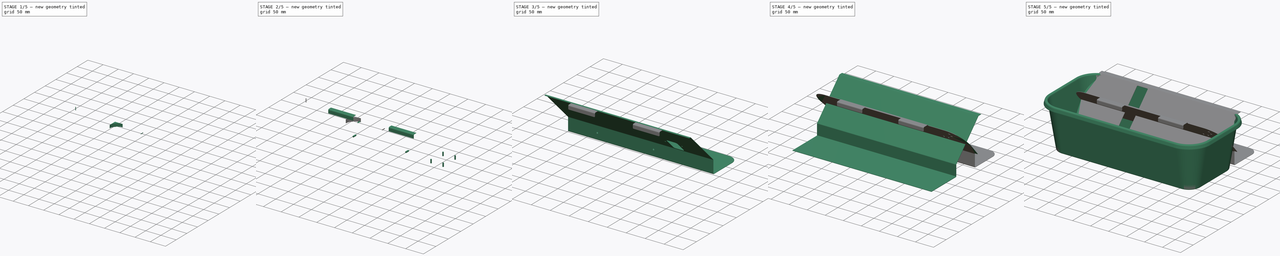
[diagram: build sequence overview — one tinted view per stage of 5, left to right]
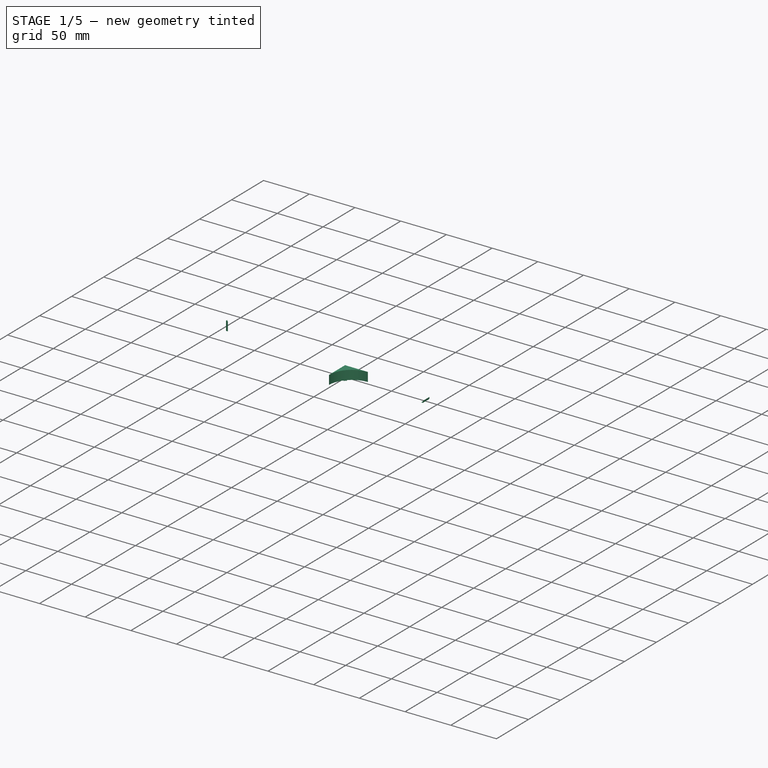
[diagram: stage 1 of 5 — iso view after this stage's code; geometry added in this stage tinted green]
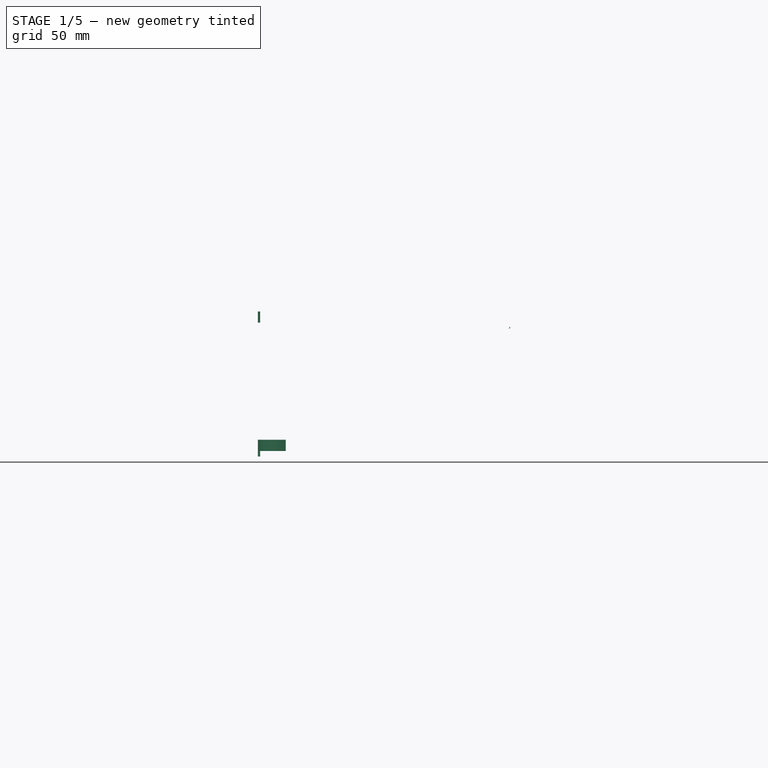
[diagram: stage 1 of 5 — front view after this stage's code; geometry added in this stage tinted green]
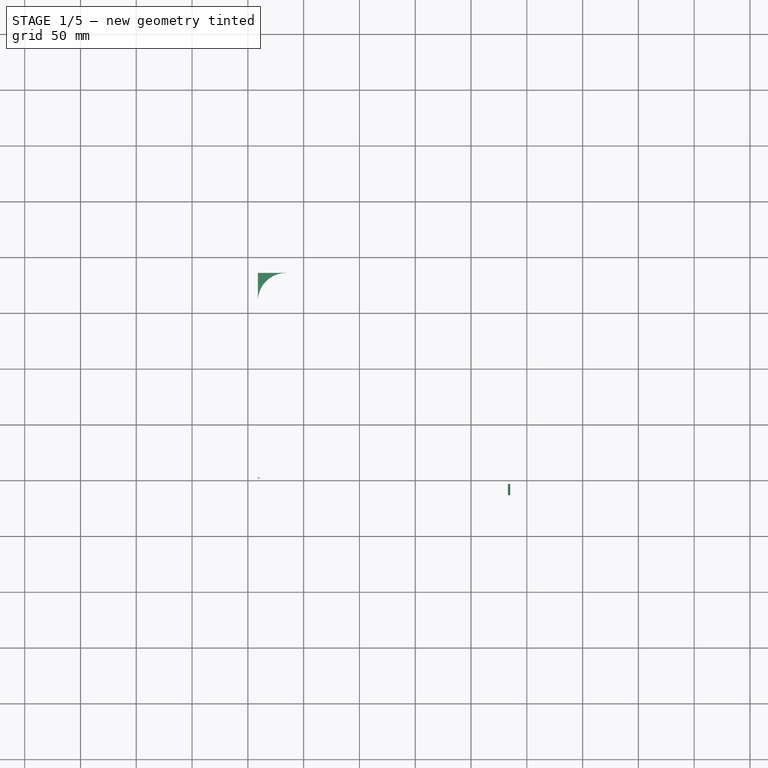
[diagram: stage 1 of 5 — top view after this stage's code; geometry added in this stage tinted green]
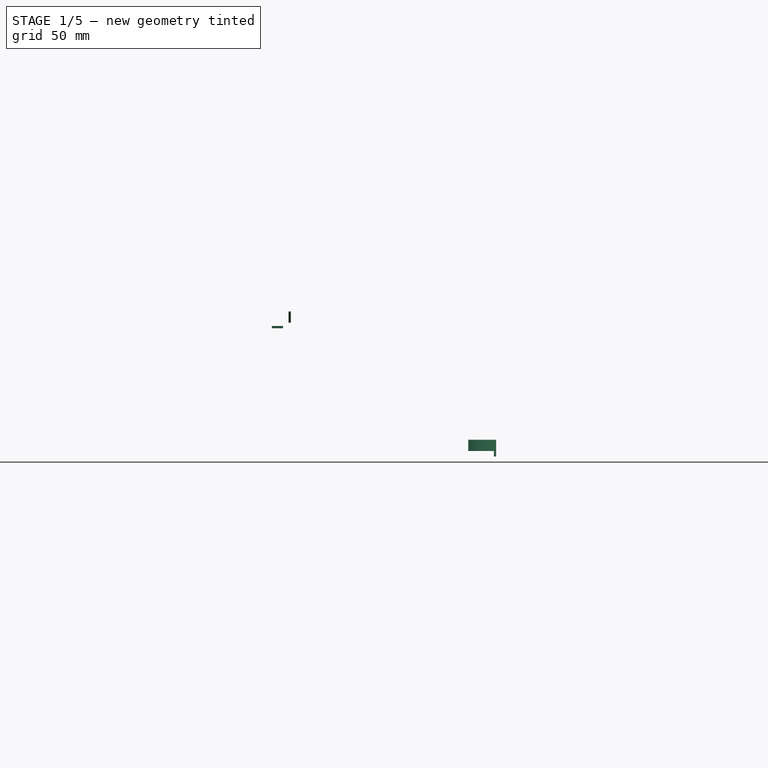
[diagram: stage 1 of 5 — right view after this stage's code; geometry added in this stage tinted green]
FCSTD DOCUMENT  (FreeCAD 0.22R37100 (Git))
Label: basin450x225x125
License: All rights reserved
LicenseURL: http://en.wikipedia.org/wiki/All_rights_reserved
objects: Sketcher::SketchObject×25, Part::FeaturePython×17, PartDesign::Pocket×8, TechDraw::DrawViewDimension×7, PartDesign::Pad×4, PartDesign::SubShapeBinder×4, PartDesign::CoordinateSystem×4, Part::Extrusion×4, PartDesign::Body×3, Part::Compound×3, PartDesign::FeaturePython×2, Part::Mirroring×2, PartDesign::Boolean×2, PartDesign::LinearPattern×2, TechDraw::DrawProjGroupItem×2, PartDesign::SubtractivePipe×1, PartDesign::Thickness×1, PartDesign::Mirrored×1, Part::MultiFuse×1, PartDesign::MultiTransform×1, +4 more types
note: 114 computed .brp shape members not serialized (recipe doc carries the construction recipe); baked Part::Feature solids carry a one-line shape summary decoded from their .brp
EXTERNAL_REF file=composit_stand10/composit_stand10_model.FCStd obj=Assembly

FEATURE [PartDesign::Body] Body001  label="basin450x225x125_pump_holder"
  Group = -> [Binder,BaseBend,Sketch004,Pocket001,Mirrored,Sketch005,Binder001,Pad001,Local_CS001,Sketch006,Pocket002]
  Origin = -> Origin001
  Tip = -> Pocket002
FEATURE [PartDesign::SubShapeBinder] Binder045
  BindCopyOnChange = 0
  BindMode = 0
  ClaimChildren = true
  Context = -> Body033 [Binder045.]
  Fuse = false
  MakeFace = true
  OffsetFill = false
  OffsetIntersection = false
  OffsetJoinType = 0
  OffsetOpenResult = false
  PartialLoad = false
  Placement = pos=(0,0,0) rot=(0.57735,0.57735,0.57735;2.0944rad)
  Relative = false
  Support = -> [Sketch117]
  _Version = 2
  expr: Placement = <<pump_holder_base_sketch>>.Placement
FEATURE [PartDesign::FeaturePython] BaseBend022  label="pump_holder_BaseBend"  # WARN: FeaturePython — macro-defined, semantics opaque (R4)
  BendSide = 1
  BendSketch = -> Binder045
  MidPlane = true
  Reverse = false
  Suppressed = false
  length = 382
  radius = 2
  thickness = 0.7
FEATURE [PartDesign::SubShapeBinder] Binder046
  BindCopyOnChange = 0
  BindMode = 0
  ClaimChildren = true
  Context = -> <external composit_stand10/composit_stand10_model.FCStd>#Assembly [pump_holder.Binder046.]
  Fuse = false
  MakeFace = true
  OffsetFill = false
  OffsetIntersection = false
  OffsetJoinType = 0
  OffsetOpenResult = false
  PartialLoad = false
  Relative = false
  Support = -> [Part__Mirroring028]
  _Version = 2
  expr: Support = <<Sketch108 (Mirror #26)>>._self
FEATURE [Part::FeaturePython] LinearArray019  # WARN: FeaturePython — macro-defined, semantics opaque (R4)
  Alignment = 0
  CellStart = A1
  Count = 2
  Dir = (1,0,0)
  DirIsDriven = true
  DistributionLaw = 0
  DrivenProperty = 1
  EndInclusive = true
  ExposePlacement = false
  GeneratorMode = 0
  MarkerShape = 1
  MarkerSize = 0
  NumElements = 2
  OrientMode = 1
  Placement = pos=(-85,0,0) rot=(0,0,1;0rad)
  Point = (0,0,0)
  PointIsDriven = true
  Reverse = false
  SpanEnd = 170
  SpanStart = 0
  Step = 170
  Type = lattice2LinearArray.LinearArray
  VSGVersion = 1
  Values = 0.0 | 170.0
  ValuesSource = 2
  isLattice = 1
  expr: .Placement.Base.x = -SpanEnd / 2
FEATURE [PartDesign::CoordinateSystem] Local_CS044  label="pump_holder_orig_LCS"
  AttacherType = Attacher::AttachEngine3D
  AttachmentOffset = pos=(0,97,0) rot=(0,0,1;0rad)
  AttachmentSupport = -> [XY_Plane008]
  MapMode = 5
  Placement = pos=(0,97,0) rot=(0,0,1;0rad)
FEATURE [Part::FeaturePython] Placment058  # WARN: FeaturePython — macro-defined, semantics opaque (R4)
  AttacherType = Attacher::AttachEngine3D
  AttachmentOffset = pos=(-141,0,0) rot=(-0.57735,-0.57735,-0.57735;2.0944rad)
  ExposePlacement = true
  MapMode = 45
  MarkerShape = 1
  MarkerSize = 20
  NumElements = 1
  Placement = pos=(111,120.5,0) rot=(0,0,1;1.5708rad)
  Type = lattice2AttachablePlacement.AttachablePlacement
  isLattice = 1
  expr: .AttachmentOffset.Base.x = -(<<pump_holder_BaseBend>>.length / 2 - 50 mm)
FEATURE [Sketcher::SketchObject] Sketch116
  FullyConstrained = true
  sketch-geometry (3):
    g0: ArcOfCircle CenterX=-2 CenterY=-2 CenterZ=0 NormalX=0 NormalY=0 NormalZ=1 AngleXU=0 Radius=2 StartAngle=0 EndAngle=1.5708
    g1: LineSegment StartX=-2 StartY=0 StartZ=0 EndX=0 EndY=0 EndZ=0
    g2: LineSegment StartX=0 StartY=0 StartZ=0 EndX=0 EndY=-2 EndZ=0
  constraints (7):
    c: PointOnObject(g0,g-2)
    c: PointOnObject(g0,g-1)
    c: Coincident(g1,g2)
    c: Tangent(g2,g0) = 1.5708
    c: Tangent(g0,g1) = 1.5708
    c: Coincident(g1,g-1)
    c: Radius(g0) = 2
FEATURE [Part::Extrusion] Extrude034
  Base = -> Sketch116
  Dir = (0,0,1)
  DirMode = 2
  FaceMakerClass = Part::FaceMakerBullseye
  LengthFwd = 10
  LengthRev = 0
  Solid = true
  Symmetric = true
FEATURE [Sketcher::SketchObject] Sketch117  label="pump_holder_base_sketch"
  FullyConstrained = true
  Placement = pos=(0,0,0) rot=(0.57735,0.57735,0.57735;2.0944rad)
  sketch-geometry (7):
    g0: LineSegment StartX=0 StartY=120 StartZ=0 EndX=5 EndY=120 EndZ=0
    g1: LineSegment StartX=5 StartY=120 StartZ=0 EndX=90 EndY=35 EndZ=0
    g2: LineSegment StartX=90 StartY=35 StartZ=0 EndX=90 EndY=0 EndZ=0
    g3: LineSegment StartX=90 StartY=0 StartZ=0 EndX=186 EndY=0 EndZ=0
    g4: LineSegment StartX=-3.737e-13 StartY=-3.737e-13 StartZ=0 EndX=10 EndY=-10 EndZ=0
    g5: ArcOfCircle CenterX=-1.90919 CenterY=-1.90919 CenterZ=0 NormalX=0 NormalY=0 NormalZ=1 AngleXU=0 Radius=2.7 StartAngle=0.785398 EndAngle=1.5708
    g6: LineSegment StartX=-2.00919 StartY=0.790812 StartZ=0 EndX=-1.90919 EndY=0.790812 EndZ=0
  constraints (24):
    c: Horizontal(g0)
    c: Coincident(g0,g1)
    c: Coincident(g1,g2)
    c: PointOnObject(g2,g-1)
    c: Vertical(g2)
    c: Coincident(g2,g3)
    c: PointOnObject(g3,g-1)
    c: DistanceX(g3,g3) = 96
    c: DistanceY(g0) = 120
    c: DistanceX(g2) = 90
    c: DistanceY(g1) = 35
    c: Angle(g1,g-1) = 0.785398  'angle'
    c: Coincident(g4,g-1)
    c: Parallel(g4,g1)
    c: DistanceX(g4) = 10
    c: Radius(g5) = 2.7
    c: Tangent(g5,g4) = 1.5708
    c: Horizontal(g6)
    c: Tangent(g6,g5) = 1.5708
    c: DistanceX(g6,g6) = 0.1
    c: DistanceX(g6,g5) = 2.00919  'bend_length'
    c: DistanceY(g5,g6) = 0.790812  'bend_height'
    c: DistanceX(g0) = 5
    c: DistanceX(g0) = 0
FEATURE [Part::FeaturePython] Placment056  # WARN: FeaturePython — macro-defined, semantics opaque (R4)
  AttacherType = Attacher::AttachEngine3D
  AttachmentOffset = pos=(0,0,0) rot=(-0.57735,0.57735,0.57735;2.0944rad)
  AttachmentSupport = -> [Sketch117]
  ExposePlacement = true
  MapMode = 7
  MarkerShape = 1
  MarkerSize = 20
  NumElements = 1
  Placement = pos=(0,186,0) rot=(0,0,1;1.5708rad)
  Type = lattice2AttachablePlacement.AttachablePlacement
  isLattice = 1
FEATURE [Part::FeaturePython] Placment057  # WARN: FeaturePython — macro-defined, semantics opaque (R4)
  AttacherType = Attacher::AttachEngine3D
  AttachmentOffset = pos=(0,0,0) rot=(0.57735,-0.57735,0.57735;2.0944rad)
  AttachmentSupport = -> [Sketch117]
  ExposePlacement = true
  MapMode = 7
  MarkerShape = 1
  MarkerSize = 5
  NumElements = 1
  Placement = pos=(0,0,120) rot=(0.707107,-0.707107,0;3.14159rad)
  Type = lattice2AttachablePlacement.AttachablePlacement
  isLattice = 1
FEATURE [Part::FeaturePython] Join019  # WARN: FeaturePython — macro-defined, semantics opaque (R4)
  ExposePlacement = false
  Interleave = false
  Links = -> [Placment056,Placment057]
  MarkerShape = 1
  MarkerSize = 0
  NumElements = 2
  Type = lattice2JoinArrays.JoinArrays
  isLattice = 1
FEATURE [Part::FeaturePython] Placment059  # WARN: FeaturePython — macro-defined, semantics opaque (R4)
  AttacherType = Attacher::AttachEngine3D
  AttachmentOffset = pos=(-40,1,0) rot=(0.57735,-0.57735,0.57735;2.0944rad)
  AttachmentSupport = -> [Sketch117]
  ExposePlacement = true
  MapMode = 45
  MarkerShape = 1
  MarkerSize = 20
  NumElements = 1
  Placement = pos=(-40,91,17.5) rot=(0.57735,-0.57735,0.57735;2.0944rad)
  Type = lattice2AttachablePlacement.AttachablePlacement
  isLattice = 1
FEATURE [Part::FeaturePython] Populate095  label="Populate Join003 with Extrude005"  # WARN: FeaturePython — macro-defined, semantics opaque (R4)
  Copying = 0
  ExposePlacement = false
  MarkerShape = 1
  MarkerSize = 0
  NumElements = 0
  Object = -> Extrude034
  OutputCompounding = 1
  Placement = pos=(-191,0,0) rot=(0,0,1;0rad)
  PlacementsTo = -> Join019
  Referencing = 0
  Type = lattice2PopulateCopies.LatticePopulateCopies
  isLattice = 0
  expr: .Placement.Base.x = -<<pump_holder_BaseBend>>.length / 2
FEATURE [Sketcher::SketchObject] Sketch121
  AttachmentOffset = pos=(0,0,69.9077) rot=(0,0,1;0rad)
  ExternalGeometry = -> [Sketch118]
  FullyConstrained = true
  MapMode = 5
  Placement = pos=(0,0,69.9077) rot=(0,0,1;0rad)
  expr: .AttachmentOffset.Base.z = <<Sketch118>>.Placement.Base.z - <<pump_holder_base_sketch>>.Constraints.bend_height
  expr: Constraints[21] = <<pump_holder_base_sketch>>.Constraints.bend_length
  sketch-geometry (12):
    g0: LineSegment StartX=187 StartY=45.3107 StartZ=0 EndX=187 EndY=62.4357 EndZ=0
    g1: LineSegment StartX=190.75 StartY=62.4357 StartZ=0 EndX=190.75 EndY=56.3107 EndZ=0
    g2: LineSegment StartX=205 StartY=45.3107 StartZ=0 EndX=205 EndY=62.4357 EndZ=0
    g3: LineSegment StartX=201.25 StartY=62.4357 StartZ=0 EndX=201.25 EndY=56.3107 EndZ=0
    g4: ArcOfCircle CenterX=196 CenterY=56.3107 CenterZ=0 NormalX=0 NormalY=0 NormalZ=1 AngleXU=0 Radius=5.25 StartAngle=3.14159 EndAngle=6.28319
    g5: ArcOfCircle CenterX=203.125 CenterY=62.4357 CenterZ=0 NormalX=0 NormalY=0 NormalZ=1 AngleXU=0 Radius=1.875 StartAngle=-9e-16 EndAngle=3.14159
    g6: ArcOfCircle CenterX=188.875 CenterY=62.4357 CenterZ=0 NormalX=0 NormalY=0 NormalZ=1 AngleXU=0 Radius=1.875 StartAngle=-1.8e-15 EndAngle=3.14159
    g7: LineSegment StartX=203.125 StartY=64.3107 StartZ=0 EndX=188.875 EndY=64.3107 EndZ=0
    g8: LineSegment StartX=205 StartY=45.3107 StartZ=0 EndX=187 EndY=45.3107 EndZ=0
    g9: LineSegment StartX=186 StartY=43.3015 StartZ=0 EndX=186 EndY=45.3107 EndZ=0
    g10: LineSegment StartX=186 StartY=45.3107 StartZ=0 EndX=187 EndY=45.3107 EndZ=0
    g11: LineSegment StartX=205 StartY=43.3015 StartZ=0 EndX=205 EndY=45.3107 EndZ=0
  constraints (30):
    c: Tangent(g4,g3) = 1.5708
    c: Tangent(g4,g1) = -1.5708
    c: Tangent(g6,g0) = 1.5708
    c: Tangent(g6,g1) = 1.5708
    c: Tangent(g5,g3) = -1.5708
    c: Tangent(g5,g2) = -1.5708
    c: Equal(g6,g5)
    c: Diameter(g4) = 10.5
    c: Tangent(g7,g5) = -1.5708
    c: Coincident(g0,g8)
    c: Distance(g4,g7) = 8
    c: Parallel(g2,g0)
    c: Parallel(g0,g3)
    c: Parallel(g3,g1)
    c: Perpendicular(g2,g7)
    c: Perpendicular(g2,g8)
    c: Tangent(g7,g6) = -1.5708
    c: Coincident(g2,g8)
    c: Coincident(g-3,g9)
    c: Coincident(g9,g10)
    c: Coincident(g10,g0)
    c: DistanceY(g9,g9) = 2.00919
    c: Perpendicular(g10,g9)
    c: Parallel(g10,g8)
    c: Coincident(g11,g-3)
    c: Coincident(g2,g11)
    c: Equal(g11,g9)
    c: Parallel(g11,g9)
    c: Distance(g10) = 1
    c: Distance(g4,g8) = 11
FEATURE [Sketcher::SketchObject] Sketch122
  AttachmentOffset = pos=(0,0,0) rot=(1,0,0;1.5708rad)
  AttachmentSupport = -> [Binder045]
  FullyConstrained = true
  MapMode = 7
  Placement = pos=(0,90,35) rot=(1,0,0;2.35619rad)
  sketch-geometry (26):
    g0: ArcOfCircle CenterX=140 CenterY=18 CenterZ=0 NormalX=0 NormalY=0 NormalZ=1 AngleXU=0 Radius=1.5 StartAngle=3.14159 EndAngle=6.28319
    g1: ArcOfCircle CenterX=140 CenterY=21 CenterZ=0 NormalX=0 NormalY=0 NormalZ=1 AngleXU=0 Radius=1.5 StartAngle=-9e-16 EndAngle=3.14159
    g2: LineSegment StartX=138.5 StartY=18 StartZ=0 EndX=138.5 EndY=21 EndZ=0
    g3: LineSegment StartX=141.5 StartY=18 StartZ=0 EndX=141.5 EndY=21 EndZ=0
    g4: ArcOfCircle CenterX=153 CenterY=18 CenterZ=0 NormalX=0 NormalY=0 NormalZ=1 AngleXU=0 Radius=1.5 StartAngle=3.14159 EndAngle=6.28319
    g5: ArcOfCircle CenterX=153 CenterY=21 CenterZ=0 NormalX=0 NormalY=0 NormalZ=1 AngleXU=0 Radius=1.5 StartAngle=7e-16 EndAngle=3.14159
    g6: LineSegment StartX=151.5 StartY=18 StartZ=0 EndX=151.5 EndY=21 EndZ=0
    g7: LineSegment StartX=154.5 StartY=18 StartZ=0 EndX=154.5 EndY=21 EndZ=0
    g8: ArcOfCircle CenterX=140 CenterY=68 CenterZ=0 NormalX=0 NormalY=0 NormalZ=1 AngleXU=0 Radius=1.5 StartAngle=3.14159 EndAngle=6.28319
    g9: ArcOfCircle CenterX=140 CenterY=71 CenterZ=0 NormalX=0 NormalY=0 NormalZ=1 AngleXU=0 Radius=1.5 StartAngle=3.6e-15 EndAngle=3.14159
    g10: LineSegment StartX=138.5 StartY=68 StartZ=0 EndX=138.5 EndY=71 EndZ=0
    g11: LineSegment StartX=141.5 StartY=68 StartZ=0 EndX=141.5 EndY=71 EndZ=0
    g12: ArcOfCircle CenterX=153 CenterY=68 CenterZ=0 NormalX=0 NormalY=0 NormalZ=1 AngleXU=0 Radius=1.5 StartAngle=3.14159 EndAngle=6.28319
    g13: ArcOfCircle CenterX=153 CenterY=71 CenterZ=0 NormalX=0 NormalY=0 NormalZ=1 AngleXU=0 Radius=1.5 StartAngle=-9e-16 EndAngle=3.14159
    g14: LineSegment StartX=151.5 StartY=68 StartZ=0 EndX=151.5 EndY=71 EndZ=0
    g15: LineSegment StartX=154.5 StartY=68 StartZ=0 EndX=154.5 EndY=71 EndZ=0
    g16: ArcOfCircle CenterX=168 CenterY=99 CenterZ=0 NormalX=0 NormalY=0 NormalZ=1 AngleXU=0 Radius=1.5 StartAngle=1.5708 EndAngle=4.71239
    g17: ArcOfCircle CenterX=171 CenterY=99 CenterZ=0 NormalX=0 NormalY=0 NormalZ=1 AngleXU=0 Radius=1.5 StartAngle=4.71239 EndAngle=7.85398
    g18: LineSegment StartX=168 StartY=100.5 StartZ=0 EndX=171 EndY=100.5 EndZ=0
    g19: LineSegment StartX=168 StartY=97.5 StartZ=0 EndX=171 EndY=97.5 EndZ=0
    g20: ArcOfCircle CenterX=168 CenterY=86 CenterZ=0 NormalX=0 NormalY=0 NormalZ=1 AngleXU=0 Radius=1.5 StartAngle=1.5708 EndAngle=4.71239
    g21: ArcOfCircle CenterX=171 CenterY=86 CenterZ=0 NormalX=0 NormalY=0 NormalZ=1 AngleXU=0 Radius=1.5 StartAngle=4.71239 EndAngle=7.85398
    g22: LineSegment StartX=168 StartY=87.5 StartZ=0 EndX=171 EndY=87.5 EndZ=0
    g23: LineSegment StartX=168 StartY=84.5 StartZ=0 EndX=171 EndY=84.5 EndZ=0
    g24: LineSegment StartX=171 StartY=99 StartZ=0 EndX=168 EndY=99 EndZ=0
    g25: LineSegment StartX=168 StartY=99 StartZ=0 EndX=168 EndY=86 EndZ=0
  constraints (64):
    c: Tangent(g0,g2) = 1.5708
    c: Tangent(g0,g3) = -1.5708
    c: Tangent(g1,g2) = 1.5708
    c: Tangent(g1,g3) = -1.5708
    c: Equal(g0,g1)
    c: Vertical(g3)
    c: Radius(g1) = 1.5
    c: DistanceY(g3,g3) = 3
    c: DistanceX(g0) = 140
    c: DistanceY(g0) = 18
    c: Tangent(g4,g6) = 1.5708
    c: Tangent(g4,g7) = -1.5708
    c: Tangent(g5,g6) = 1.5708
    c: Tangent(g5,g7) = -1.5708
    c: Equal(g4,g5)
    c: Vertical(g7)
    c: Radius(g5) = 1.5
    c: DistanceY(g7,g7) = 3
    c: Horizontal(g0,g4)
    c: DistanceX(g0,g4) = 13
    c: Tangent(g8,g10) = 1.5708
    c: Tangent(g16,g18) = 1.5708
    c: Tangent(g8,g11) = -1.5708
    c: Tangent(g16,g19) = -1.5708
    c: Tangent(g9,g10) = 1.5708
    c: Tangent(g17,g18) = 1.5708
    c: Tangent(g9,g11) = -1.5708
    c: Tangent(g17,g19) = -1.5708
    c: Equal(g8,g9)
    c: Equal(g16,g17)
    c: Vertical(g11)
    c: Radius(g9) = 1.5
    c: Radius(g17) = 1.5
    c: DistanceY(g11,g11) = 3
    c: Tangent(g12,g14) = 1.5708
    c: Tangent(g20,g22) = 1.5708
    c: Tangent(g12,g15) = -1.5708
    c: Tangent(g20,g23) = -1.5708
    c: Tangent(g13,g14) = 1.5708
    c: Tangent(g21,g22) = 1.5708
    c: Tangent(g13,g15) = -1.5708
    c: Tangent(g21,g23) = -1.5708
    c: Equal(g12,g13)
    c: Equal(g20,g21)
    c: Vertical(g15)
    c: Radius(g13) = 1.5
    c: Radius(g21) = 1.5
    c: DistanceY(g15,g15) = 3
    c: Horizontal(g8,g12)
    c: DistanceX(g8,g12) = 13
    c: Vertical(g0,g8)
    c: DistanceY(g0,g8) = 50
    c: Parallel(g19,g23)
    c: Coincident(g24,g17)
    c: Coincident(g24,g16)
    c: Coincident(g24,g25)
    c: Coincident(g25,g20)
    c: Perpendicular(g24,g25)
    c: Distance(g25) = 13
    c: Distance(g24) = 3
    c: Equal(g22,g19)
    c: Vertical(g25)
    c: DistanceX(g12,g20) = 15
    c: DistanceY(g12,g20) = 18
FEATURE [Sketcher::SketchObject] Sketch123
  AttachmentSupport = -> [YZ_Plane008]
  ExternalGeometry = -> [Binder045,Sketch121]
  FullyConstrained = true
  MapMode = 5
  Placement = pos=(0,0,0) rot=(0.57735,0.57735,0.57735;2.0944rad)
  sketch-geometry (1):
    g0: LineSegment StartX=5 StartY=120 StartZ=0 EndX=5 EndY=0 EndZ=0
  constraints (5):
    c: Coincident(g0,g-3)
    c: PointOnObject(g0,g-1)
    c: Vertical(g0)
    c: Distance(g-4,g0) = 57.4357
    c: Distance(g-5,g0) = 46.0607
FEATURE [Sketcher::SketchObject] Sketch124
  AttachmentSupport = -> [YZ_Plane008]
  ExternalGeometry = -> [Binder045]
  FullyConstrained = true
  MapMode = 5
  Placement = pos=(0,0,0) rot=(0.57735,0.57735,0.57735;2.0944rad)
  sketch-geometry (1):
    g0: LineSegment StartX=56 StartY=69 StartZ=0 EndX=56 EndY=0 EndZ=0
  constraints (4):
    c: PointOnObject(g0,g-3)
    c: PointOnObject(g0,g-1)
    c: Vertical(g0)
    c: DistanceY(g0) = 69
FEATURE [PartDesign::CoordinateSystem] Local_CS043
  AttacherType = Attacher::AttachEngine3D
  AttachmentOffset = pos=(103,0,0) rot=(1,0,0;-0.785398rad)
  AttachmentSupport = -> [Sketch124]
  MapMode = 1
  Placement = pos=(103,56,69) rot=(-1,0,0;0.785398rad)
FEATURE [Sketcher::SketchObject] Sketch125
  AttachmentSupport = -> [Local_CS043]
  FullyConstrained = true
  MapMode = 5
  Placement = pos=(103,56,69) rot=(-1,0,0;0.785398rad)
  sketch-geometry (2):
    g0: Circle CenterX=22 CenterY=15.6586 CenterZ=0 NormalX=0 NormalY=0 NormalZ=1 AngleXU=0 Radius=1.7
    g1: Circle CenterX=-22 CenterY=15.6586 CenterZ=0 NormalX=0 NormalY=0 NormalZ=1 AngleXU=0 Radius=1.7
  constraints (5):
    c: Symmetric(g1,g0,g-2)
    c: Equal(g0,g1)
    c: Diameter(g0) = 3.4
    c: DistanceX(g0) = 22
    c: DistanceY(g0) = 15.6586
FEATURE [Sketcher::SketchObject] Sketch126
  AttachmentSupport = -> [Local_CS043]
  ExternalGeometry = -> [Binder045]
  FullyConstrained = true
  MapMode = 5
  Placement = pos=(103,56,69) rot=(-1,0,0;0.785398rad)
  sketch-geometry (11):
    g0: LineSegment StartX=-9.5 StartY=3 StartZ=0 EndX=9.5 EndY=3 EndZ=0
    g1: LineSegment StartX=14.5 StartY=8 StartZ=0 EndX=14.5 EndY=40.0833 EndZ=0
    g2: LineSegment StartX=9.5 StartY=45.0833 StartZ=0 EndX=-9.5 EndY=45.0833 EndZ=0
    g3: LineSegment StartX=-14.5 StartY=40.0833 StartZ=0 EndX=-14.5 EndY=8 EndZ=0
    g4: ArcOfCircle CenterX=-9.5 CenterY=8 CenterZ=0 NormalX=0 NormalY=0 NormalZ=1 AngleXU=0 Radius=5 StartAngle=3.14159 EndAngle=4.71239
    g5: ArcOfCircle CenterX=9.5 CenterY=8 CenterZ=0 NormalX=0 NormalY=0 NormalZ=1 AngleXU=0 Radius=5 StartAngle=4.71239 EndAngle=6.28319
    g6: ArcOfCircle CenterX=9.5 CenterY=40.0833 CenterZ=0 NormalX=0 NormalY=0 NormalZ=1 AngleXU=0 Radius=5 StartAngle=2e-16 EndAngle=1.5708
    g7: ArcOfCircle CenterX=-9.5 CenterY=40.0833 CenterZ=0 NormalX=0 NormalY=0 NormalZ=1 AngleXU=0 Radius=5 StartAngle=1.5708 EndAngle=3.14159
    g8: GeomPoint X=-14.5 Y=3 Z=0
    g9: GeomPoint X=14.5 Y=45.0833 Z=0
    g10: GeomPoint X=0 Y=24.0416 Z=0
  constraints (25):
    c: Tangent(g0,g4) = -1.5708
    c: Tangent(g0,g5) = -1.5708
    c: Tangent(g1,g5) = -1.5708
    c: Tangent(g1,g6) = -1.5708
    c: Tangent(g2,g6) = -1.5708
    c: Tangent(g2,g7) = -1.5708
    c: Tangent(g3,g7) = -1.5708
    c: Tangent(g3,g4) = -1.5708
    c: Horizontal(g0)
    c: Horizontal(g2)
    c: Vertical(g1)
    c: Vertical(g3)
    c: Equal(g4,g5)
    c: Equal(g5,g6)
    c: Equal(g6,g7)
    c: PointOnObject(g8,g0)
    c: PointOnObject(g8,g3)
    c: PointOnObject(g9,g1)
    c: PointOnObject(g9,g2)
    c: Radius(g6) = 5
    c: Symmetric(g8,g9,g10)
    c: DistanceX(g8,g9) = 29
    c: DistanceY(g9,g-3) = 3
    c: DistanceY(g8) = 3
    c: PointOnObject(g10,g-2)
FEATURE [Sketcher::SketchObject] Sketch127
  ExternalGeometry = -> [Sketch117]
  FullyConstrained = true
  Placement = pos=(0,0,0) rot=(0.57735,0.57735,0.57735;2.0944rad)
  sketch-geometry (2):
    g0: LineSegment StartX=-10 StartY=110 StartZ=0 EndX=-10 EndY=120 EndZ=0
    g1: LineSegment StartX=-10 StartY=120 StartZ=0 EndX=-1.24e-14 EndY=120 EndZ=0
  constraints (6):
    c: Vertical(g0)
    c: Coincident(g1,g0)
    c: Horizontal(g1)
    c: DistanceX(g1,g1) = 10
    c: DistanceY(g0,g0) = 10
    c: Coincident(g1,g-3)
FEATURE [Part::FeaturePython] BaseBend023  # WARN: FeaturePython — macro-defined, semantics opaque (R4)
  BendSide = 1
  BendSketch = -> Sketch127
  MidPlane = true
  Reverse = false
  length = 70
  radius = 2
  thickness = 0.7
FEATURE [Part::FeaturePython] Populate099  label="Populate Placment031 with Extrude005"  # WARN: FeaturePython — macro-defined, semantics opaque (R4)
  Copying = 0
  ExposePlacement = false
  MarkerShape = 1
  MarkerSize = 0
  NumElements = 0
  Object = -> Extrude034
  OutputCompounding = 2
  PlacementsTo = -> Placment060
  Referencing = 0
  Type = lattice2PopulateCopies.LatticePopulateCopies
  isLattice = 0
FEATURE [Sketcher::SketchObject] Sketch128
  AttachmentSupport = -> [XY_Plane008]
  FullyConstrained = true
  MapMode = 5
  sketch-geometry (4):
    g0: ArcOfCircle CenterX=110 CenterY=-16 CenterZ=0 NormalX=0 NormalY=0 NormalZ=1 AngleXU=0 Radius=1.6 StartAngle=1.5708 EndAngle=4.71239
    g1: ArcOfCircle CenterX=113 CenterY=-16 CenterZ=0 NormalX=0 NormalY=0 NormalZ=1 AngleXU=0 Radius=1.6 StartAngle=4.71239 EndAngle=7.85398
    g2: LineSegment StartX=110 StartY=-14.4 StartZ=0 EndX=113 EndY=-14.4 EndZ=0
    g3: LineSegment StartX=110 StartY=-17.6 StartZ=0 EndX=113 EndY=-17.6 EndZ=0
  constraints (10):
    c: Tangent(g0,g2) = 1.5708
    c: Tangent(g0,g3) = -1.5708
    c: Tangent(g1,g2) = 1.5708
    c: Tangent(g1,g3) = -1.5708
    c: Equal(g0,g1)
    c: Horizontal(g3)
    c: Diameter(g1) = 3.2
    c: DistanceY(g1) = -16
    c: DistanceX(g0,g1) = 3
    c: DistanceX(g1) = 113
FEATURE [PartDesign::LinearPattern] LinearPattern003
  Direction = -> Sketch128 [H_Axis]
  Length = 40
  Mode = 0
  Occurrences = 2
  Offset = 40
  Reversed = true
  Suppressed = false
FEATURE [PartDesign::LinearPattern] LinearPattern004
  Direction = -> Sketch128 [V_Axis]
  Length = 10
  Mode = 0
  Occurrences = 2
  Offset = 10
  Reversed = true
  Suppressed = false
FEATURE [Sketcher::SketchObject] Sketch130
  AttachmentOffset = pos=(0,0,0) rot=(0,0.382683,0.92388;3.14159rad)
  AttachmentSupport = -> [XY_Plane008]
  FullyConstrained = true
  MapMode = 5
  Placement = pos=(0,0,0) rot=(0,0.382683,0.92388;3.14159rad)
  expr: Constraints[9] = -<<pump_holder_BaseBend>>.length / 2
  sketch-geometry (13):
    g0: LineSegment StartX=-165 StartY=78 StartZ=0 EndX=-120 EndY=78 EndZ=0
    g1: LineSegment StartX=-120 StartY=78 StartZ=0 EndX=-120 EndY=108 EndZ=0
    g2: LineSegment StartX=-120 StartY=108 StartZ=0 EndX=-191 EndY=108 EndZ=0
    g3: LineSegment StartX=-191 StartY=108 StartZ=0 EndX=-191 EndY=48 EndZ=0
    g4: LineSegment StartX=165 StartY=78 StartZ=0 EndX=120 EndY=78 EndZ=0
    g5: LineSegment StartX=120 StartY=78 StartZ=0 EndX=120 EndY=108 EndZ=0
    g6: LineSegment StartX=120 StartY=108 StartZ=0 EndX=191 EndY=108 EndZ=0
    g7: LineSegment StartX=191 StartY=108 StartZ=0 EndX=191 EndY=76.5 EndZ=0
    g8: LineSegment StartX=165 StartY=78 StartZ=0 EndX=165 EndY=48 EndZ=0
    g9: LineSegment StartX=165 StartY=48 StartZ=0 EndX=191 EndY=48 EndZ=0
    g10: LineSegment StartX=191 StartY=48 StartZ=0 EndX=191 EndY=76.5 EndZ=0
    g11: LineSegment StartX=-191 StartY=48 StartZ=0 EndX=-165 EndY=48 EndZ=0
    g12: LineSegment StartX=-165 StartY=48 StartZ=0 EndX=-165 EndY=78 EndZ=0
  constraints (38):
    c: Coincident(g0,g1)
    c: Coincident(g1,g2)
    c: Coincident(g2,g3)
    c: Horizontal(g0)
    c: Horizontal(g2)
    c: Vertical(g1)
    c: Vertical(g3)
    c: DistanceX(g0) = -120
    c: DistanceY(g0) = 78
    c: DistanceX(g3) = -191
    c: DistanceY(g1,g1) = 30
    c: Coincident(g4,g5)
    c: Coincident(g5,g6)
    c: Coincident(g6,g7)
    c: Horizontal(g4)
    c: Horizontal(g6)
    c: Vertical(g5)
    c: Vertical(g7)
    c: Equal(g1,g5)
    c: Symmetric(g4,g0,g-2)
    c: Equal(g6,g2)
    c: DistanceY(g7,g4) = 1.5
    c: DistanceX(g4,g4) = 45
    c: Coincident(g4,g8)
    c: Vertical(g8)
    c: Coincident(g8,g9)
    c: Horizontal(g9)
    c: Coincident(g9,g10)
    c: Coincident(g10,g7)
    c: Vertical(g10)
    c: DistanceY(g8,g8) = 30
    c: DistanceX(g0,g0) = 45
    c: Horizontal(g11)
    c: Coincident(g11,g12)
    c: Coincident(g12,g0)
    c: Vertical(g12)
    c: Coincident(g11,g3)
    c: Horizontal(g11,g8)
FEATURE [Sketcher::SketchObject] Sketch129
  AttachmentOffset = pos=(-191,0,0) rot=(0,0.707107,0.707107;3.14159rad)
  AttachmentSupport = -> [Binder045]
  ExternalGeometry = -> [Sketch130]
  FullyConstrained = true
  MapMode = 7
  Placement = pos=(-191,90,35) rot=(0,0.382683,0.92388;3.14159rad)
  expr: .AttachmentOffset.Base.x = -<<pump_holder_BaseBend>>.length / 2
  sketch-geometry (10):
    g0: ArcOfCircle CenterX=-63.1235 CenterY=62.1003 CenterZ=0 NormalX=0 NormalY=0 NormalZ=1 AngleXU=0 Radius=80 StartAngle=6.15659 EndAngle=6.6609
    g1: GeomPoint X=24 Y=113 Z=0
    g2: LineSegment StartX=10.2224 StartY=4.74749 StartZ=0 EndX=16.2364 EndY=52 EndZ=0
    g3: ArcOfCircle CenterX=8.23841 CenterY=5 CenterZ=0 NormalX=0 NormalY=0 NormalZ=1 AngleXU=0 Radius=2 StartAngle=4.71239 EndAngle=6.15659
    g4: LineSegment StartX=8.23841 StartY=3 StartZ=0 EndX=2 EndY=3 EndZ=0
    g5: GeomPoint X=10 Y=3 Z=0
    g6: ArcOfCircle CenterX=2 CenterY=1 CenterZ=0 NormalX=0 NormalY=0 NormalZ=1 AngleXU=0 Radius=2 StartAngle=1.5708 EndAngle=3.14159
    g7: ArcOfCircle CenterX=-26 CenterY=76.8296 CenterZ=0 NormalX=0 NormalY=0 NormalZ=1 AngleXU=0 Radius=40.0613 StartAngle=0.377714 EndAngle=1.5708
    g8: LineSegment StartX=-26 StartY=116.891 StartZ=0 EndX=-26 EndY=1 EndZ=0
    g9: LineSegment StartX=-26 StartY=1 StartZ=0 EndX=0 EndY=1 EndZ=0
  constraints (26):
    c: PointOnObject(g6,g-2)
    c: DistanceX(g1) = 24
    c: DistanceY(g1) = 113
    c: DistanceY(g6) = 1
    c: PointOnObject(g1,g2)
    c: Horizontal(g4)
    c: Tangent(g4,g3) = 1.5708
    c: Tangent(g3,g2) = -1.5708
    c: PointOnObject(g5,g4)
    c: PointOnObject(g5,g2)
    c: Tangent(g6,g4) = -1.5708
    c: Equal(g6,g3)
    c: Radius(g6) = 2
    c: Tangent(g2,g0) = -1.5708
    c: DistanceX(g5) = 10
    c: Radius(g0) = 80
    c: DistanceY(g0) = 52
    c: Tangent(g0,g7) = -1.5708
    c: Coincident(g8,g9)
    c: Coincident(g7,g8)
    c: Coincident(g7,g-3)
    c: Perpendicular(g7,g8)
    c: Vertical(g8)
    c: Horizontal(g9)
    c: Coincident(g9,g6)
    c: Perpendicular(g6,g9)
FEATURE [Part::Mirroring] Part__Mirroring028  label="Sketch108 (Mirror #26)"
  Base = (0,0,0)
  Normal = (1,0,0)
  Source = -> Sketch129
FEATURE [Sketcher::SketchObject] Sketch131
  FullyConstrained = true
  sketch-geometry (3):
    g0: ArcOfCircle CenterX=-25 CenterY=-25 CenterZ=0 NormalX=0 NormalY=0 NormalZ=1 AngleXU=0 Radius=25 StartAngle=0 EndAngle=1.5708
    g1: LineSegment StartX=-25 StartY=0 StartZ=0 EndX=0 EndY=0 EndZ=0
    g2: LineSegment StartX=0 StartY=0 StartZ=0 EndX=0 EndY=-25 EndZ=0
  constraints (7):
    c: Radius(g0) = 25
    c: Coincident(g1,g2)
    c: Tangent(g2,g0) = 1.5708
    c: Tangent(g0,g1) = 1.5708
    c: Perpendicular(g2,g1)
    c: Coincident(g1,g-1)
    c: PointOnObject(g0,g-2)
FEATURE [Part::Extrusion] Extrude
  Base = -> Sketch131
  Dir = (0,0,1)
  DirMode = 2
  FaceMakerClass = Part::FaceMakerBullseye
  LengthFwd = 10
  LengthRev = 0
  Solid = true
  Symmetric = false
FEATURE [Part::FeaturePython] Populate100  label="Populate Join003 with Extrude006"  # WARN: FeaturePython — macro-defined, semantics opaque (R4)
  Copying = 0
  ExposePlacement = false
  MarkerShape = 1
  MarkerSize = 0
  NumElements = 0
  Object = -> Extrude
  OutputCompounding = 1
  Placement = pos=(-191,0,0) rot=(0,0,1;0rad)
  PlacementsTo = -> Placment056
  Referencing = 0
  Type = lattice2PopulateCopies.LatticePopulateCopies
  isLattice = 0
  expr: .Placement.Base.x = -<<pump_holder_BaseBend>>.length / 2
FEATURE [Part::MultiFuse] Fusion
  Shapes = -> [Populate095,Populate100]
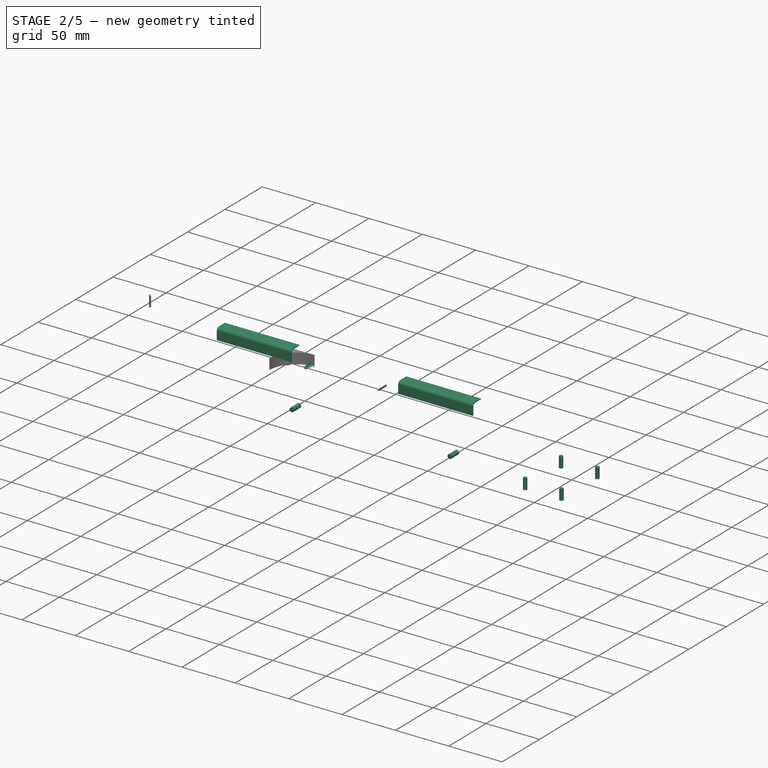
[diagram: stage 2 of 5 — iso view after this stage's code; geometry added in this stage tinted green]
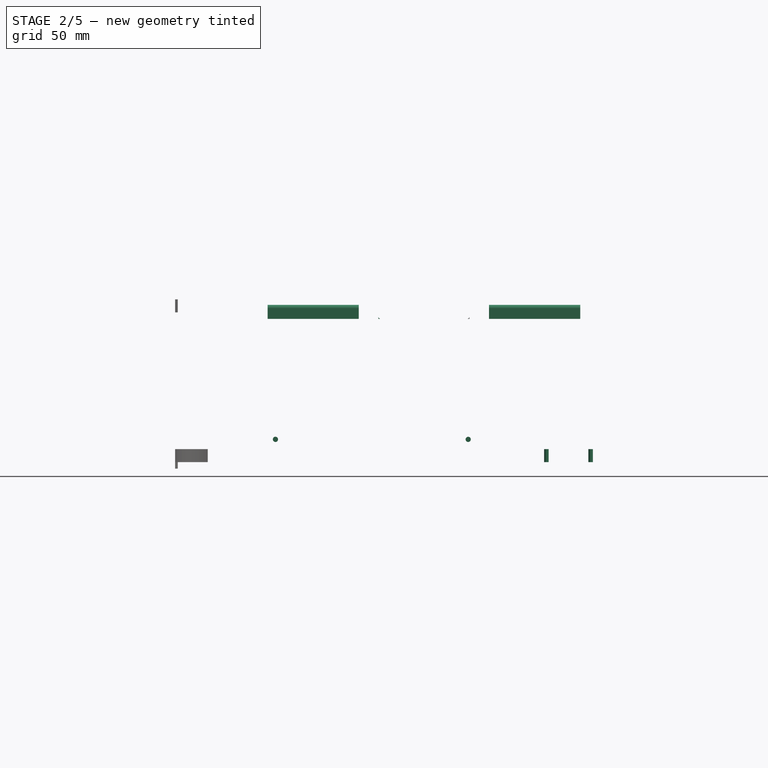
[diagram: stage 2 of 5 — front view after this stage's code; geometry added in this stage tinted green]
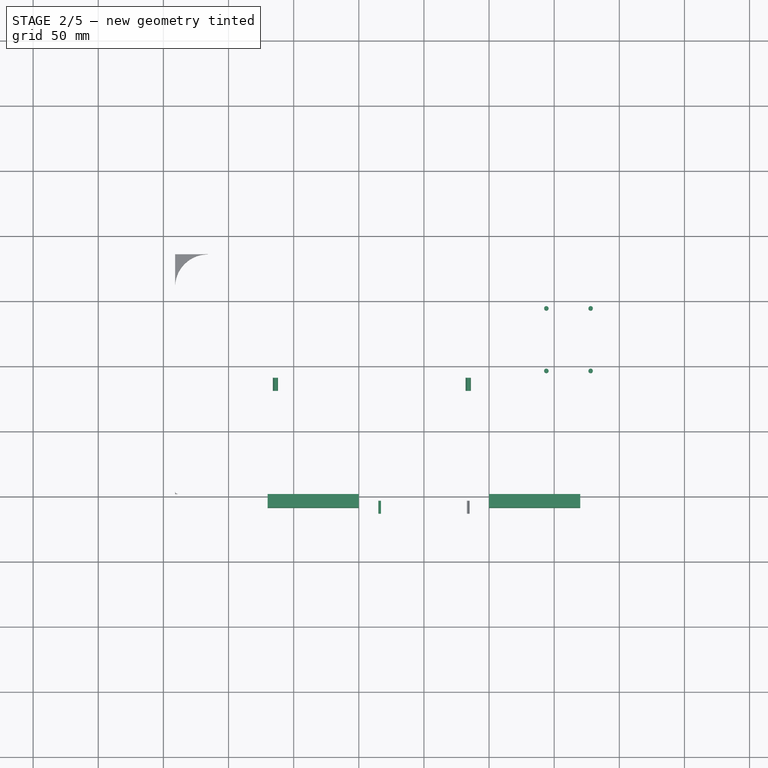
[diagram: stage 2 of 5 — top view after this stage's code; geometry added in this stage tinted green]
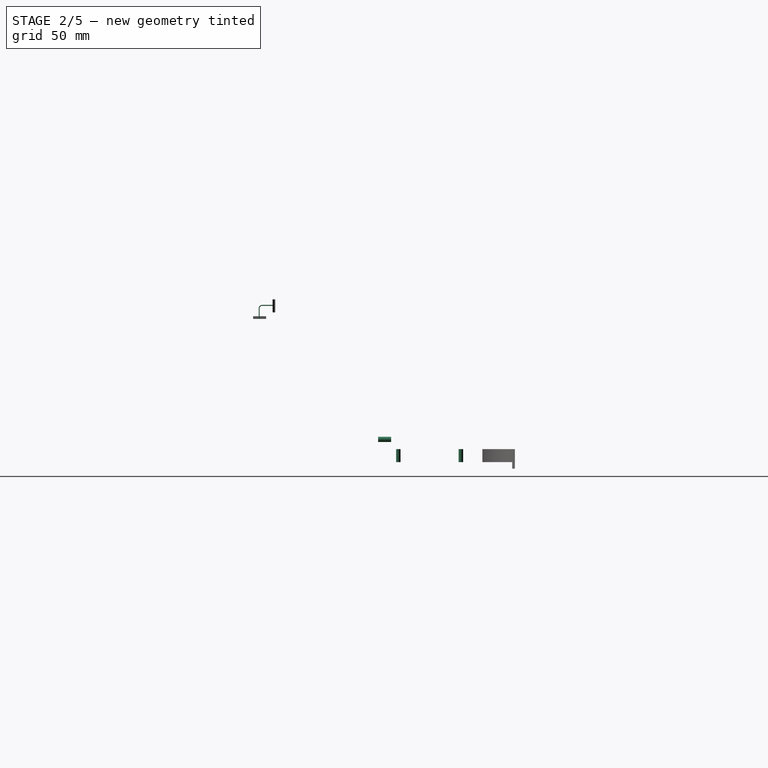
[diagram: stage 2 of 5 — right view after this stage's code; geometry added in this stage tinted green]
FEATURE [Sketcher::SketchObject] Sketch118
  AttachmentOffset = pos=(191,0,42) rot=(0,0.707107,0.707107;3.14159rad)
  FullyConstrained = true
  MapMode = 7
  Placement = pos=(205,43.3015,70.6985) rot=(0,0.382683,0.92388;3.14159rad)
  expr: .AttachmentOffset.Base.x = <<pump_holder_BaseBend>>.length / 2
  sketch-geometry (8):
    g0: LineSegment StartX=19 StartY=-25 StartZ=0 EndX=19 EndY=0 EndZ=0
    g1: LineSegment StartX=0 StartY=0 StartZ=0 EndX=0 EndY=-35 EndZ=0
    g2: LineSegment StartX=19 StartY=0 StartZ=0 EndX=0 EndY=0 EndZ=0
    g3: GeomPoint X=19 Y=0 Z=0
    g4: LineSegment StartX=5 StartY=-30 StartZ=0 EndX=14 EndY=-30 EndZ=0
    g5: ArcOfCircle CenterX=5 CenterY=-35 CenterZ=0 NormalX=0 NormalY=0 NormalZ=1 AngleXU=0 Radius=5 StartAngle=1.5708 EndAngle=3.14159
    g6: ArcOfCircle CenterX=14 CenterY=-25 CenterZ=0 NormalX=0 NormalY=0 NormalZ=1 AngleXU=0 Radius=5 StartAngle=4.71239 EndAngle=6.28319
    g7: GeomPoint X=19 Y=-30 Z=0
  constraints (20):
    c: Vertical(g0)
    c: Vertical(g1)
    c: DistanceX(g1,g7) = 19
    c: Horizontal(g2)
    c: PointOnObject(g3,g0)
    c: PointOnObject(g3,g2)
    c: Coincident(g1,g2)
    c: Horizontal(g4)
    c: Tangent(g1,g5) = -1.5708
    c: Tangent(g5,g4) = 1.5708
    c: PointOnObject(g1,g-2)
    c: Coincident(g0,g2)
    c: Tangent(g0,g6) = -1.5708
    c: Tangent(g4,g6) = -1.5708
    c: Equal(g6,g5)
    c: Radius(g6) = 5
    c: PointOnObject(g7,g4)
    c: PointOnObject(g7,g0)
    c: DistanceY(g7,g0) = 30
    c: PointOnObject(g0,g-1)
FEATURE [Sketcher::SketchObject] Sketch119
  FullyConstrained = true
  sketch-geometry (9):
    g0: LineSegment StartX=-24 StartY=-17 StartZ=0 EndX=24 EndY=-17 EndZ=0
    g1: LineSegment StartX=24 StartY=-17 StartZ=0 EndX=24 EndY=17 EndZ=0
    g2: LineSegment StartX=24 StartY=17 StartZ=0 EndX=-24 EndY=17 EndZ=0
    g3: LineSegment StartX=-24 StartY=17 StartZ=0 EndX=-24 EndY=-17 EndZ=0
    g4: GeomPoint X=0 Y=0 Z=0
    g5: Circle CenterX=24 CenterY=17 CenterZ=0 NormalX=0 NormalY=0 NormalZ=1 AngleXU=0 Radius=1.7
    g6: Circle CenterX=24 CenterY=-17 CenterZ=0 NormalX=0 NormalY=0 NormalZ=1 AngleXU=0 Radius=1.7
    g7: Circle CenterX=-24 CenterY=-17 CenterZ=0 NormalX=0 NormalY=0 NormalZ=1 AngleXU=0 Radius=1.7
    g8: Circle CenterX=-24 CenterY=17 CenterZ=0 NormalX=0 NormalY=0 NormalZ=1 AngleXU=0 Radius=1.7
  constraints (20):
    c: Coincident(g0,g1)
    c: Coincident(g1,g2)
    c: Coincident(g2,g3)
    c: Coincident(g3,g0)
    c: Horizontal(g0)
    c: Horizontal(g2)
    c: Vertical(g1)
    c: Vertical(g3)
    c: Symmetric(g2,g0,g4)
    c: Coincident(g4,g-1)
    c: Coincident(g5,g1)
    c: Coincident(g6,g0)
    c: Coincident(g7,g0)
    c: Coincident(g8,g2)
    c: Equal(g8,g5)
    c: Equal(g8,g6)
    c: Equal(g8,g7)
    c: Diameter(g8) = 3.4
    c: DistanceX(g0,g0) = 48
    c: DistanceY(g1,g1) = 34
FEATURE [Part::Extrusion] Extrude035
  Base = -> Sketch119
  Dir = (0,0,1)
  DirMode = 2
  FaceMakerClass = Part::FaceMakerBullseye
  LengthFwd = 10
  LengthRev = 0
  Solid = true
  Symmetric = false
FEATURE [Part::FeaturePython] Populate096  label="Populate Placment014 with Extrude016"  # WARN: FeaturePython — macro-defined, semantics opaque (R4)
  Copying = 0
  ExposePlacement = false
  MarkerShape = 1
  MarkerSize = 0
  NumElements = 0
  Object = -> Extrude035
  OutputCompounding = 2
  PlacementsTo = -> Placment058
  Referencing = 0
  Type = lattice2PopulateCopies.LatticePopulateCopies
  isLattice = 0
FEATURE [Sketcher::SketchObject] Sketch120
  FullyConstrained = true
  sketch-geometry (2):
    g0: Circle CenterX=0 CenterY=-74 CenterZ=0 NormalX=0 NormalY=0 NormalZ=1 AngleXU=0 Radius=2
    g1: Circle CenterX=0 CenterY=74 CenterZ=0 NormalX=0 NormalY=0 NormalZ=1 AngleXU=0 Radius=2
  constraints (5):
    c: PointOnObject(g1,g-2)
    c: Symmetric(g1,g0,g-1)
    c: DistanceY(g0,g1) = 148
    c: Equal(g1,g0)
    c: Diameter(g1) = 4
FEATURE [Part::Extrusion] Extrude036
  Base = -> Sketch120
  Dir = (0,0,1)
  DirMode = 2
  FaceMakerClass = Part::FaceMakerBullseye
  LengthFwd = 10
  LengthRev = 0
  Solid = true
  Symmetric = false
FEATURE [Part::FeaturePython] Populate097  label="Populate Placment015 with Extrude017"  # WARN: FeaturePython — macro-defined, semantics opaque (R4)
  Copying = 0
  ExposePlacement = false
  MarkerShape = 1
  MarkerSize = 0
  NumElements = 0
  Object = -> Extrude036
  OutputCompounding = 2
  PlacementsTo = -> Placment059
  Referencing = 0
  Type = lattice2PopulateCopies.LatticePopulateCopies
  isLattice = 0
FEATURE [Part::FeaturePython] Placment060  # WARN: FeaturePython — macro-defined, semantics opaque (R4)
  AttacherType = Attacher::AttachEngine3D
  AttachmentOffset = pos=(-35,0,0) rot=(0,0.707107,0.707107;3.14159rad)
  AttachmentSupport = -> [Sketch127]
  ExposePlacement = true
  MapMode = 7
  MarkerShape = 1
  MarkerSize = 10
  NumElements = 1
  Placement = pos=(35,-10,110) rot=(1,0,0;4.71239rad)
  Type = lattice2AttachablePlacement.AttachablePlacement
  isLattice = 1
  expr: .AttachmentOffset.Base.x = -<<BaseBend023>>.length / 2
FEATURE [Part::FeaturePython] Populate098  label="Populate LinearArray019 with BaseBend023"  # WARN: FeaturePython — macro-defined, semantics opaque (R4)
  Copying = 0
  ExposePlacement = false
  MarkerShape = 1
  MarkerSize = 0
  NumElements = 0
  Object = -> BaseBend023
  OutputCompounding = 1
  PlacementsTo = -> LinearArray019
  Referencing = 0
  Type = lattice2PopulateCopies.LatticePopulateCopies
  isLattice = 0
FEATURE [Part::FeaturePython] Mirror010  label="Mirror009 of Populate Placment031 with Extrude005"  # WARN: FeaturePython — macro-defined, semantics opaque (R4)
  ExposePlacement = false
  FlipX = true
  FlipY = false
  FlipZ = false
  MarkerShape = 1
  MarkerSize = 0
  NumElements = 0
  Object = -> Populate099
  ObjectTraversal = 0
  Type = lattice2Mirror.LatticeMirror
  isLattice = 0
FEATURE [Part::Compound] Compound034
  Links = -> [Mirror010,Populate099]
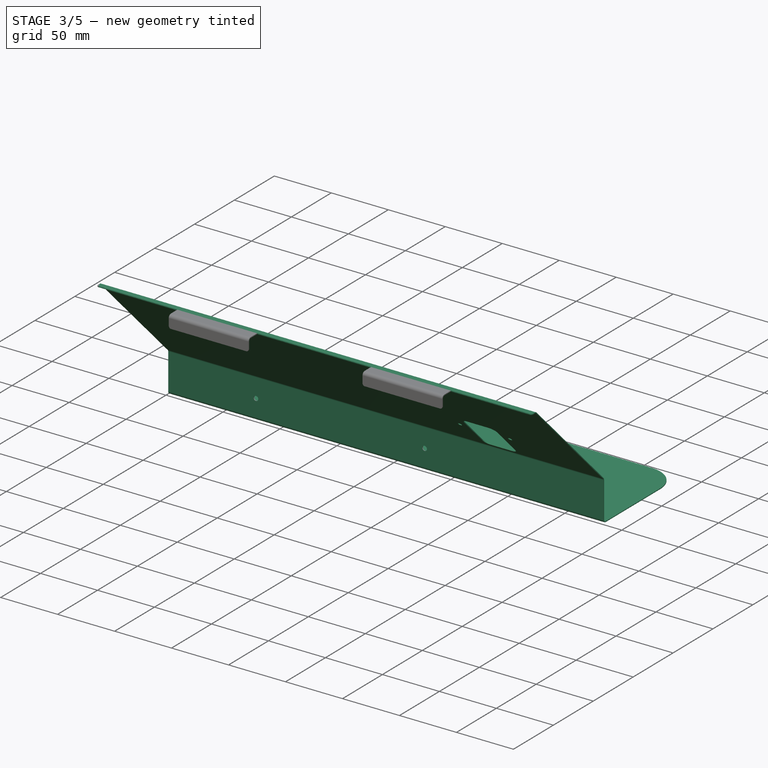
[diagram: stage 3 of 5 — iso view after this stage's code; geometry added in this stage tinted green]
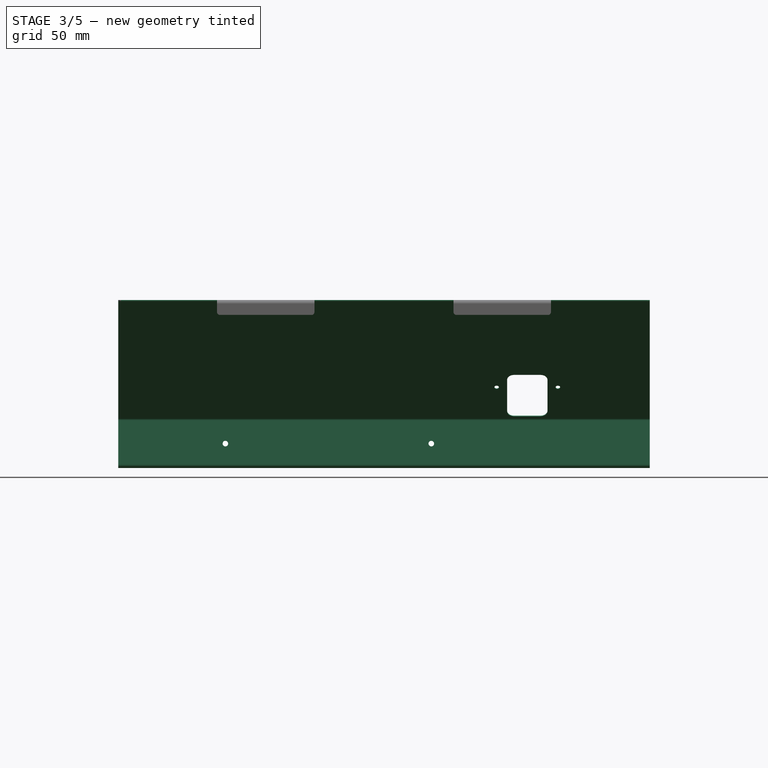
[diagram: stage 3 of 5 — front view after this stage's code; geometry added in this stage tinted green]
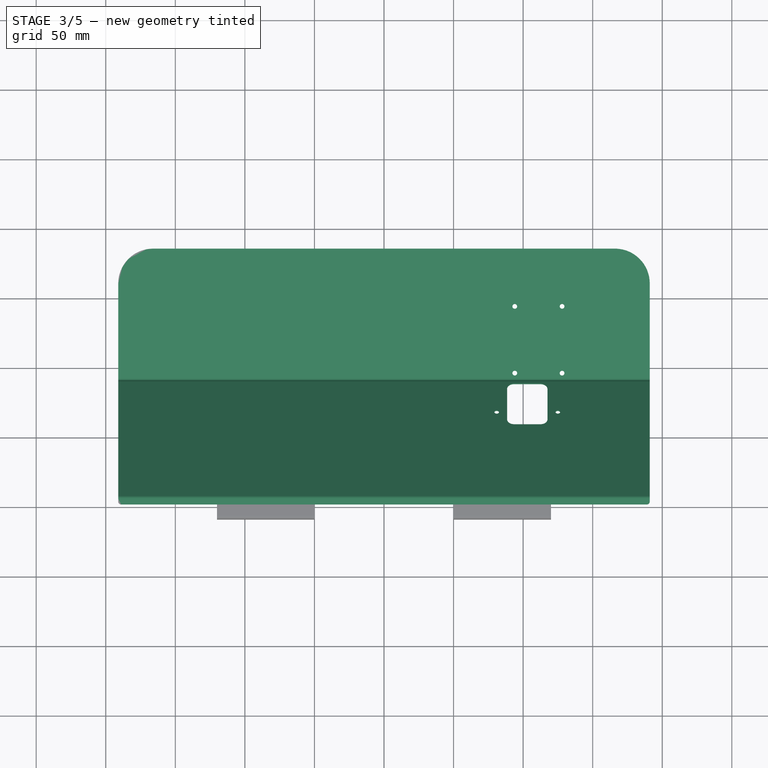
[diagram: stage 3 of 5 — top view after this stage's code; geometry added in this stage tinted green]
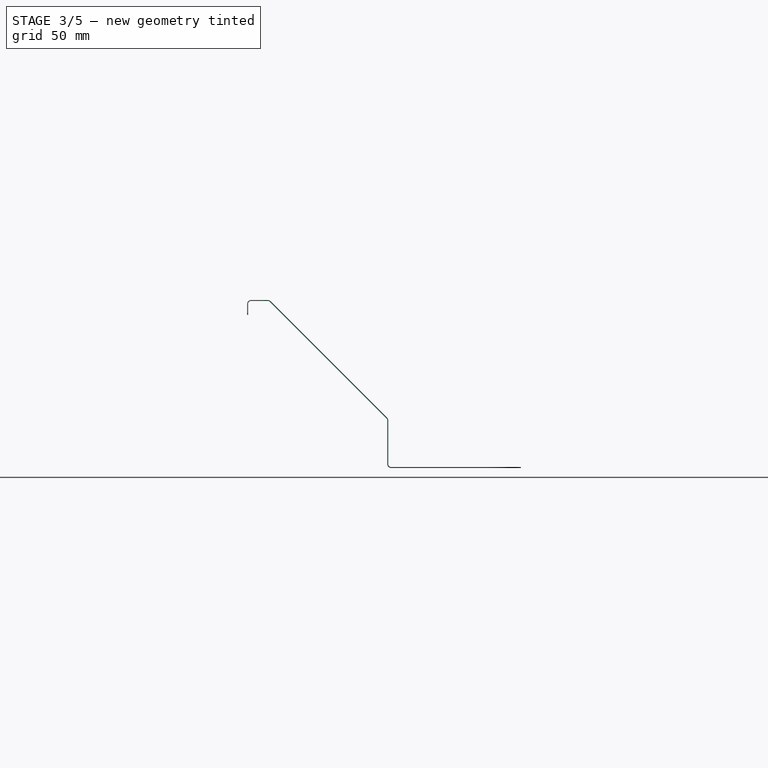
[diagram: stage 3 of 5 — right view after this stage's code; geometry added in this stage tinted green]
FEATURE [Part::Compound] Compound033
  Links = -> [Populate098]
FEATURE [PartDesign::Boolean] Boolean036
  BaseFeature = -> BaseBend022
  Group = -> [Compound033]
  Refine = true
  Suppressed = false
  Type = 0
  UsePlacement = true
FEATURE [Part::FeaturePython] Populate052  label="Populate LinearArray019 with Compound034"  # WARN: FeaturePython — macro-defined, semantics opaque (R4)
  Copying = 0
  ExposePlacement = false
  MarkerShape = 1
  MarkerSize = 0
  NumElements = 0
  Object = -> Compound034
  OutputCompounding = 1
  PlacementsTo = -> LinearArray019
  Referencing = 0
  Type = lattice2PopulateCopies.LatticePopulateCopies
  isLattice = 0
FEATURE [Part::FeaturePython] Mirror009  label="Mirror001 of Populate Join003 with Extrude005"  # WARN: FeaturePython — macro-defined, semantics opaque (R4)
  ExposePlacement = false
  FlipX = true
  FlipY = false
  FlipZ = false
  MarkerShape = 1
  MarkerSize = 0
  NumElements = 0
  Object = -> Fusion
  ObjectTraversal = 0
  Type = lattice2Mirror.LatticeMirror
  isLattice = 0
FEATURE [Part::Compound] Compound013
  Links = -> [Mirror009,Populate096,Populate097,Populate052,Fusion]
FEATURE [PartDesign::Boolean] Boolean026
  BaseFeature = -> Boolean036
  Group = -> [Compound013]
  Suppressed = false
  Type = 1
  UsePlacement = true
FEATURE [PartDesign::Pocket] Pocket019
  BaseFeature = -> Boolean026
  Direction = (0,-0.707107,-0.707107)
  Length = 5
  Length2 = 5
  Midplane = true
  Profile = -> Sketch125
  ReferenceAxis = -> Sketch125 [N_Axis]
  Refine = true
  Suppressed = false
  Type = 0
FEATURE [PartDesign::Pocket] Pocket020
  BaseFeature = -> Pocket019
  Direction = (0,-0.707107,-0.707107)
  Length = 5
  Length2 = 5
  Midplane = true
  Profile = -> Sketch126
  ReferenceAxis = -> Sketch126 [N_Axis]
  Suppressed = false
  Type = 0
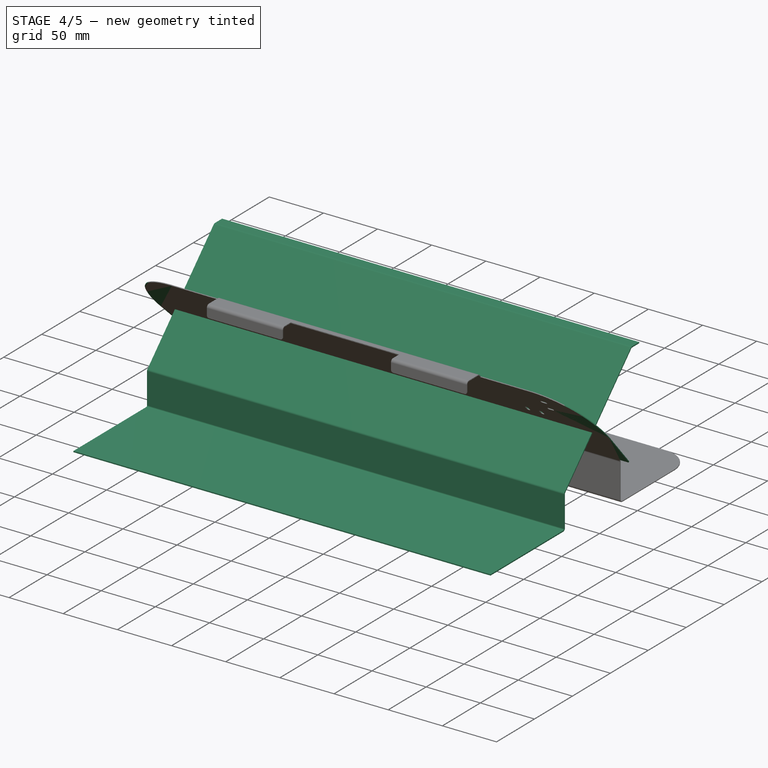
[diagram: stage 4 of 5 — iso view after this stage's code; geometry added in this stage tinted green]
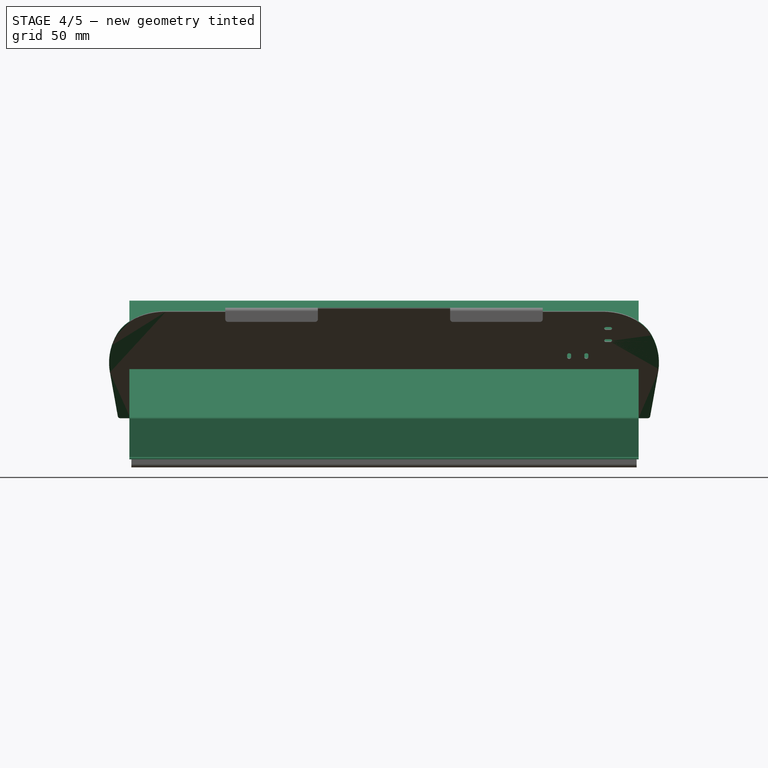
[diagram: stage 4 of 5 — front view after this stage's code; geometry added in this stage tinted green]
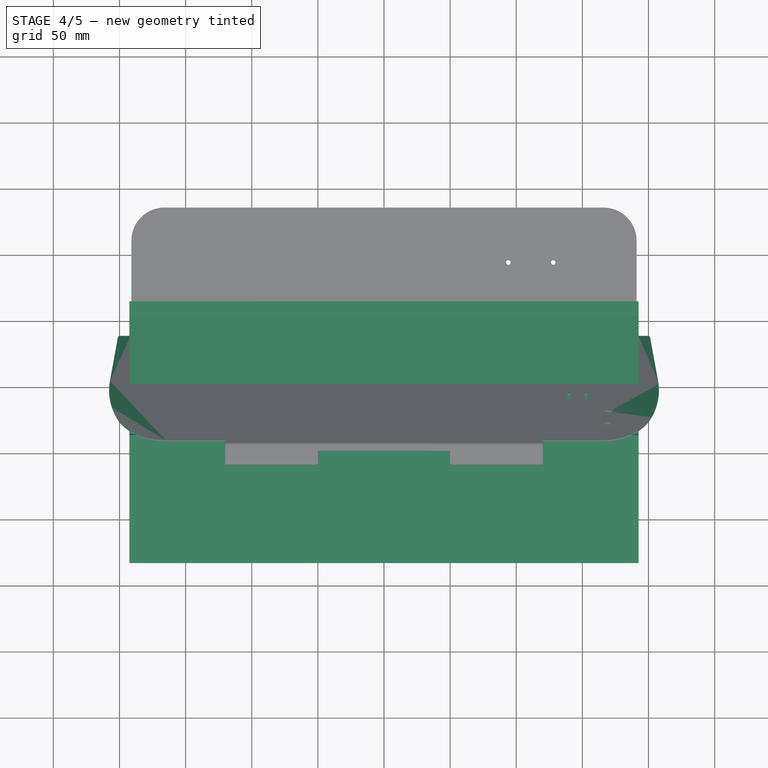
[diagram: stage 4 of 5 — top view after this stage's code; geometry added in this stage tinted green]
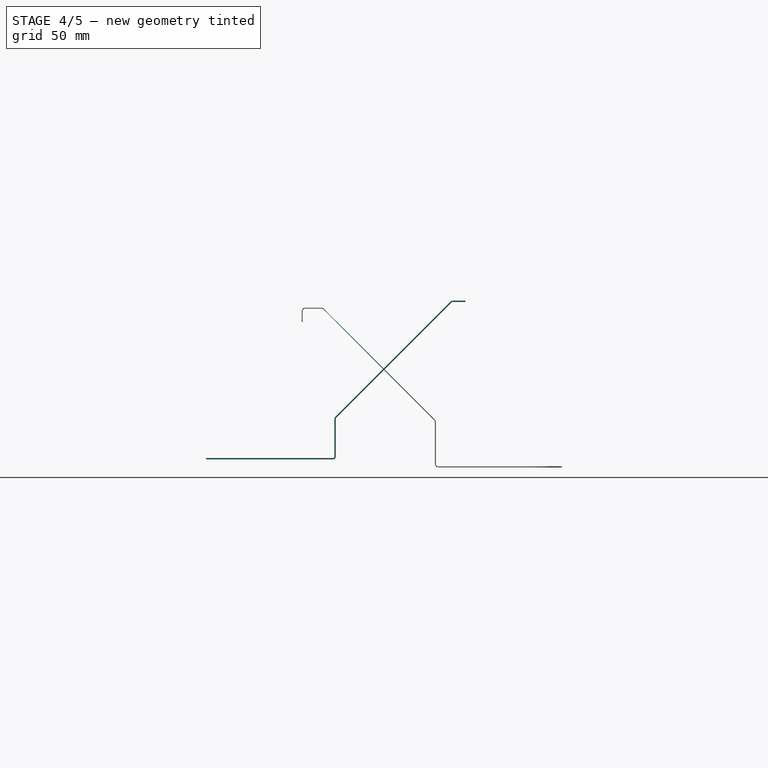
[diagram: stage 4 of 5 — right view after this stage's code; geometry added in this stage tinted green]
FEATURE [PartDesign::SubShapeBinder] Binder
  BindCopyOnChange = 0
  BindMode = 0
  ClaimChildren = true
  Context = -> Body001 [Binder.]
  Fuse = false
  MakeFace = true
  OffsetFill = false
  OffsetIntersection = false
  OffsetJoinType = 0
  OffsetOpenResult = false
  PartialLoad = false
  Placement = pos=(0,0,0) rot=(0.57735,0.57735,0.57735;2.0944rad)
  Relative = false
  Support = -> [Sketch002]
  _Version = 2
  expr: Placement = .Support[0][0].Placement
FEATURE [PartDesign::FeaturePython] BaseBend  # WARN: FeaturePython — macro-defined, semantics opaque (R4)
  BendSide = 1
  BendSketch = -> Binder
  MidPlane = true
  Reverse = false
  Suppressed = false
  length = 385
  radius = 1
  thickness = 1
FEATURE [PartDesign::Pocket] Pocket021
  BaseFeature = -> Pocket020
  Direction = (0,0,-1)
  Length = 5
  Length2 = 5
  Midplane = true
  Profile = -> Sketch128
  ReferenceAxis = -> Sketch128 [N_Axis]
  Suppressed = false
  Type = 1
FEATURE [PartDesign::MultiTransform] MultiTransform003
  BaseFeature = -> Pocket021
  Originals = -> [Pocket021]
  Suppressed = false
  Transformations = -> [LinearPattern003,LinearPattern004]
FEATURE [PartDesign::Pocket] Pocket024
  BaseFeature = -> MultiTransform003
  Direction = (0,-0.707107,-0.707107)
  Length = 5
  Length2 = 5
  Profile = -> Sketch130
  ReferenceAxis = -> Sketch130 [N_Axis]
  Reversed = true
  Suppressed = false
  Type = 1
FEATURE [PartDesign::Pad] Pad038
  BaseFeature = -> Pocket024
  Direction = (1e-16,0.707107,0.707107)
  Length = 0.7
  Length2 = 10
  Profile = -> Sketch129
  ReferenceAxis = -> Sketch129 [N_Axis]
  Suppressed = false
  Type = 0
  expr: Length = <<pump_holder_BaseBend>>.thickness
FEATURE [PartDesign::Pad] Pad039
  BaseFeature = -> Pad038
  Direction = (-2e-16,0.707107,0.707107)
  Length = 0.7
  Length2 = 10
  Profile = -> Binder046 [Face1]
  Refine = true
  Suppressed = false
  Type = 0
  expr: Length = <<Pad038>>.Length
FEATURE [PartDesign::Pocket] Pocket018
  BaseFeature = -> Pad039
  Direction = (0,0.707107,0.707107)
  Length = 5
  Length2 = 5
  Profile = -> Sketch122
  ReferenceAxis = -> Sketch122 [N_Axis]
  Suppressed = false
  Type = 0
FEATURE [PartDesign::Body] Body033  label="pump_holder"
  Group = -> [Binder045,BaseBend022,Sketch118,Sketch121,Sketch122,Boolean036,Sketch123,Boolean026,Sketch124,Local_CS043,Local_CS044,Sketch125,Pocket019,Sketch126,Pocket020,Sketch128,Pocket021,MultiTransform003,Pocket024,LinearPattern003,LinearPattern004,Sketch129,Pad038,Pad039,Binder046,Sketch130,Pocket018]
  Origin = -> Origin008
  Placement = pos=(0,-106,6) rot=(0,0,1;0rad)
  Tip = -> Pocket018
FEATURE [Part::Feature] Unfold
  shape: bbox 415.8 x 274.6 x 0.7 mm, 72 faces (baked)
FEATURE [Sketcher::SketchObject] Unfold_Sketch
  FullyConstrained = false
  sketch-geometry (70):
    g0: ArcOfCircle CenterX=-86.5686 CenterY=-52 CenterZ=0 NormalX=0 NormalY=0 NormalZ=1 AngleXU=1.5708 Radius=2 StartAngle=0 EndAngle=1.5708
    g1: LineSegment StartX=-88.5686 StartY=-52 StartZ=0 EndX=-88.5686 EndY=-118 EndZ=0
    g2: ArcOfCircle CenterX=-86.5686 CenterY=-118 CenterZ=0 NormalX=0 NormalY=0 NormalZ=1 AngleXU=-1.5708 Radius=2 StartAngle=4.71239 EndAngle=6.28319
    g3: LineSegment StartX=-86.5686 StartY=-120 StartZ=0 EndX=-60.3711 EndY=-120 EndZ=0
    g4: LineSegment StartX=-60.3711 StartY=-120 StartZ=0 EndX=-60.3711 EndY=-165 EndZ=0
    g5: ArcOfCircle CenterX=-20.3098 CenterY=-165 CenterZ=0 NormalX=0 NormalY=0 NormalZ=1 AngleXU=-1.5708 Radius=40.0613 StartAngle=4.71239 EndAngle=5.90547
    g6: ArcOfCircle CenterX=-5.58055 CenterY=-127.877 CenterZ=0 NormalX=0 NormalY=0 NormalZ=1 AngleXU=-1.5708 Radius=80 StartAngle=5.90547 EndAngle=6.40978
    g7: LineSegment StartX=51.7723 StartY=-201.222 StartZ=0 EndX=4.5198 EndY=-207.236 EndZ=0
    g8: ArcOfCircle CenterX=51.5198 CenterY=-199.238 CenterZ=0 NormalX=0 NormalY=0 NormalZ=1 AngleXU=-1.5708 Radius=2 StartAngle=0.126592 EndAngle=1.5708
    g9: LineSegment StartX=53.5198 StartY=-199.238 StartZ=0 EndX=53.5198 EndY=-193 EndZ=0
    g10: ArcOfCircle CenterX=55.5198 CenterY=-193 CenterZ=0 NormalX=0 NormalY=0 NormalZ=1 AngleXU=-1.5708 Radius=2 StartAngle=3.14159 EndAngle=4.71239
    g11: LineSegment StartX=55.5198 StartY=-191 StartZ=0 EndX=161 EndY=-191 EndZ=0
    g12: ArcOfCircle CenterX=161 CenterY=-166 CenterZ=0 NormalX=0 NormalY=0 NormalZ=1 AngleXU=2e-16 Radius=25 StartAngle=4.71239 EndAngle=6.28319
    g13: LineSegment StartX=186 StartY=166 StartZ=0 EndX=186 EndY=-166 EndZ=0
    g14: ArcOfCircle CenterX=161 CenterY=166 CenterZ=0 NormalX=0 NormalY=0 NormalZ=1 AngleXU=-2e-16 Radius=25 StartAngle=0 EndAngle=1.5708
    g15: LineSegment StartX=55.5198 StartY=191 StartZ=0 EndX=161 EndY=191 EndZ=0
    g16: ArcOfCircle CenterX=55.5198 CenterY=193 CenterZ=0 NormalX=0 NormalY=0 NormalZ=1 AngleXU=1.5708 Radius=2 StartAngle=1.5708 EndAngle=3.14159
    g17: LineSegment StartX=53.5198 StartY=199.238 StartZ=0 EndX=53.5198 EndY=193 EndZ=0
    g18: ArcOfCircle CenterX=51.5198 CenterY=199.238 CenterZ=0 NormalX=0 NormalY=0 NormalZ=1 AngleXU=1.5708 Radius=2 StartAngle=4.71239 EndAngle=6.15659
    g19: LineSegment StartX=51.7723 StartY=201.222 StartZ=0 EndX=4.5198 EndY=207.236 EndZ=0
    g20: ArcOfCircle CenterX=-5.58055 CenterY=127.877 CenterZ=0 NormalX=0 NormalY=0 NormalZ=1 AngleXU=1.5708 Radius=80 StartAngle=6.15659 EndAngle=6.6609
    g21: ArcOfCircle CenterX=-20.3098 CenterY=165 CenterZ=0 NormalX=0 NormalY=0 NormalZ=1 AngleXU=1.5708 Radius=40.0613 StartAngle=0.377714 EndAngle=1.5708
    g22: LineSegment StartX=-60.3711 StartY=120 StartZ=0 EndX=-60.3711 EndY=165 EndZ=0
    g23: LineSegment StartX=-86.5686 StartY=120 StartZ=0 EndX=-60.3711 EndY=120 EndZ=0
    g24: ArcOfCircle CenterX=-86.5686 CenterY=118 CenterZ=0 NormalX=0 NormalY=0 NormalZ=1 AngleXU=1.5708 Radius=2 StartAngle=0 EndAngle=1.5708
    g25: LineSegment StartX=-88.5686 StartY=118 StartZ=0 EndX=-88.5686 EndY=52 EndZ=0
    g26: ArcOfCircle CenterX=-86.5686 CenterY=52 CenterZ=0 NormalX=0 NormalY=0 NormalZ=1 AngleXU=-1.5708 Radius=2 StartAngle=4.71239 EndAngle=6.28319
    g27: LineSegment StartX=-86.5686 StartY=50 StartZ=0 EndX=-68.8772 EndY=50 EndZ=0
    g28: LineSegment StartX=-68.8772 StartY=50 StartZ=0 EndX=-68.8772 EndY=-50 EndZ=0
    g29: LineSegment StartX=-86.5686 StartY=-50 StartZ=0 EndX=-68.8772 EndY=-50 EndZ=0
    g30: LineSegment StartX=11.4365 StartY=-93.5 StartZ=0 EndX=11.4365 EndY=-112.5 EndZ=0
    g31: ArcOfEllipse CenterX=16.4355 CenterY=-93.5014 CenterZ=0 NormalX=0 NormalY=0 NormalZ=1 MajorRadius=4.99469 MinorRadius=4.99426 AngleXU=-1.57091 StartAngle=3.14151 EndAngle=4.71223
    g32: LineSegment StartX=48.5198 StartY=-88.5 StartZ=0 EndX=16.4365 EndY=-88.5 EndZ=0
    g33: ArcOfEllipse CenterX=48.5208 CenterY=-93.5014 CenterZ=0 NormalX=0 NormalY=0 NormalZ=1 MajorRadius=4.99469 MinorRadius=4.99426 AngleXU=-1.57069 StartAngle=1.57096 EndAngle=3.14168
    g34: LineSegment StartX=53.5198 StartY=-112.5 StartZ=0 EndX=53.5198 EndY=-93.5 EndZ=0
    g35: ArcOfEllipse CenterX=48.4627 CenterY=-112.434 CenterZ=0 NormalX=0 NormalY=0 NormalZ=1 MajorRadius=5.05215 MinorRadius=5.05021 AngleXU=-1.55949 StartAngle=6.03416e-06 EndAngle=1.54636
    g36: LineSegment StartX=16.4365 StartY=-117.5 StartZ=0 EndX=48.5198 EndY=-117.5 EndZ=0
    g37: ArcOfEllipse CenterX=16.4937 CenterY=-112.434 CenterZ=0 NormalX=0 NormalY=0 NormalZ=1 MajorRadius=5.05215 MinorRadius=5.05021 AngleXU=-1.58211 StartAngle=4.73683 EndAngle=6.28319
    g38: LineSegment StartX=35.5198 StartY=-151.5 StartZ=0 EndX=38.5198 EndY=-151.5 EndZ=0
    g39: ArcOfCircle CenterX=38.5198 CenterY=-153 CenterZ=0 NormalX=0 NormalY=0 NormalZ=1 AngleXU=-1.5708 Radius=1.5 StartAngle=0 EndAngle=3.14159
    g40: LineSegment StartX=35.5198 StartY=-154.5 StartZ=0 EndX=38.5198 EndY=-154.5 EndZ=0
    g41: ArcOfCircle CenterX=35.5198 CenterY=-153 CenterZ=0 NormalX=0 NormalY=0 NormalZ=1 AngleXU=-1.5708 Radius=1.5 StartAngle=3.14159 EndAngle=6.28319
    g42: LineSegment StartX=35.5198 StartY=-138.5 StartZ=0 EndX=38.5198 EndY=-138.5 EndZ=0
    g43: ArcOfCircle CenterX=38.5198 CenterY=-140 CenterZ=0 NormalX=0 NormalY=0 NormalZ=1 AngleXU=-1.5708 Radius=1.5 StartAngle=0 EndAngle=3.14159
    g44: LineSegment StartX=35.5198 StartY=-141.5 StartZ=0 EndX=38.5198 EndY=-141.5 EndZ=0
    g45: ArcOfCircle CenterX=35.5198 CenterY=-140 CenterZ=0 NormalX=0 NormalY=0 NormalZ=1 AngleXU=-1.5708 Radius=1.5 StartAngle=3.14159 EndAngle=6.28319
    g46: LineSegment StartX=-14.4802 StartY=-151.5 StartZ=0 EndX=-11.4802 EndY=-151.5 EndZ=0
    g47: ArcOfCircle CenterX=-11.4802 CenterY=-153 CenterZ=0 NormalX=0 NormalY=0 NormalZ=1 AngleXU=-1.5708 Radius=1.5 StartAngle=-9.8e-15 EndAngle=3.14159
    g48: LineSegment StartX=-14.4802 StartY=-154.5 StartZ=0 EndX=-11.4802 EndY=-154.5 EndZ=0
    g49: ArcOfCircle CenterX=-14.4802 CenterY=-153 CenterZ=0 NormalX=0 NormalY=0 NormalZ=1 AngleXU=-1.5708 Radius=1.5 StartAngle=3.14159 EndAngle=6.28319
    g50: LineSegment StartX=-14.4802 StartY=-138.5 StartZ=0 EndX=-11.4802 EndY=-138.5 EndZ=0
    g51: ArcOfCircle CenterX=-11.4802 CenterY=-140 CenterZ=0 NormalX=0 NormalY=0 NormalZ=1 AngleXU=-1.5708 Radius=1.5 StartAngle=-7.1e-15 EndAngle=3.14159
    g52: LineSegment StartX=-14.4802 StartY=-141.5 StartZ=0 EndX=-11.4802 EndY=-141.5 EndZ=0
    g53: ArcOfCircle CenterX=-14.4802 CenterY=-140 CenterZ=0 NormalX=0 NormalY=0 NormalZ=1 AngleXU=-1.5708 Radius=1.5 StartAngle=3.14159 EndAngle=6.28319
    g54: LineSegment StartX=-43.9802 StartY=-171 StartZ=0 EndX=-43.9802 EndY=-168 EndZ=0
    g55: ArcOfCircle CenterX=-42.4802 CenterY=-168 CenterZ=0 NormalX=0 NormalY=0 NormalZ=1 AngleXU=-1.5708 Radius=1.5 StartAngle=1.5708 EndAngle=4.71239
    g56: LineSegment StartX=-40.9802 StartY=-171 StartZ=0 EndX=-40.9802 EndY=-168 EndZ=0
    g57: ArcOfCircle CenterX=-42.4802 CenterY=-171 CenterZ=0 NormalX=0 NormalY=0 NormalZ=1 AngleXU=-1.5708 Radius=1.5 StartAngle=4.71239 EndAngle=7.85398
    g58: LineSegment StartX=-30.9802 StartY=-171 StartZ=0 EndX=-30.9802 EndY=-168 EndZ=0
    g59: ArcOfCircle CenterX=-29.4802 CenterY=-168 CenterZ=0 NormalX=0 NormalY=0 NormalZ=1 AngleXU=-1.5708 Radius=1.5 StartAngle=1.5708 EndAngle=4.71239
    g60: LineSegment StartX=-27.9802 StartY=-171 StartZ=0 EndX=-27.9802 EndY=-168 EndZ=0
    g61: ArcOfCircle CenterX=-29.4802 CenterY=-171 CenterZ=0 NormalX=0 NormalY=0 NormalZ=1 AngleXU=-1.5708 Radius=1.5 StartAngle=4.71239 EndAngle=7.85398
    g62: Circle CenterX=74.2086 CenterY=-34 CenterZ=0 NormalX=0 NormalY=0 NormalZ=1 AngleXU=-3.14159 Radius=2
    g63: Circle CenterX=74.2086 CenterY=114 CenterZ=0 NormalX=0 NormalY=0 NormalZ=1 AngleXU=-3.14159 Radius=2
    g64: Circle CenterX=96.5 CenterY=-94 CenterZ=0 NormalX=0 NormalY=0 NormalZ=-1 AngleXU=-3.14159 Radius=1.7
    g65: Ellipse CenterX=24.0951 CenterY=-125 CenterZ=0 NormalX=0 NormalY=0 NormalZ=1 MajorRadius=1.7 MinorRadius=1.7 AngleXU=-1.5708
    g66: Ellipse CenterX=24.0951 CenterY=-81 CenterZ=0 NormalX=0 NormalY=0 NormalZ=1 MajorRadius=1.7 MinorRadius=1.7 AngleXU=-1.5708
    g67: Circle CenterX=96.5 CenterY=-128 CenterZ=0 NormalX=0 NormalY=0 NormalZ=-1 AngleXU=-3.14159 Radius=1.7
    g68: Circle CenterX=144.5 CenterY=-94 CenterZ=0 NormalX=0 NormalY=0 NormalZ=-1 AngleXU=-3.14159 Radius=1.7
    g69: Circle CenterX=144.5 CenterY=-128 CenterZ=0 NormalX=0 NormalY=0 NormalZ=-1 AngleXU=-3.14159 Radius=1.7
FEATURE [Sketcher::SketchObject] Unfold_Sketch_bends
  FullyConstrained = false
  sketch-geometry (5):
    g0: LineSegment StartX=-78.7229 StartY=-120 StartZ=0 EndX=-78.7229 EndY=-50 EndZ=0
    g1: LineSegment StartX=-78.7229 StartY=50 StartZ=0 EndX=-78.7229 EndY=120 EndZ=0
    g2: LineSegment StartX=-63.7828 StartY=-120 StartZ=0 EndX=-63.7828 EndY=120 EndZ=0
    g3: LineSegment StartX=56.6142 StartY=-191 StartZ=0 EndX=56.6142 EndY=191 EndZ=0
    g4: LineSegment StartX=90.8543 StartY=-191 StartZ=0 EndX=90.8543 EndY=191 EndZ=0
FEATURE [TechDraw::DrawSVGTemplate] Template
  Height = 210
  Orientation = 1
  Template = <path>
  Width = 297
FEATURE [TechDraw::DrawProjGroupItem] View
  CoarseView = false
  Direction = (0.57735,0.57735,0.57735)
  Focus = 100
  HardHidden = false
  IsoCount = 0
  IsoHidden = false
  IsoVisible = false
  LockPosition = false
  Perspective = false
  Rotation = 0
  RotationVector = (1,0,0)
  Scale = 0.3
  ScaleType = 2
  ScrubCount = 0
  SeamHidden = false
  SeamVisible = true
  SmoothHidden = false
  SmoothVisible = true
  Source = -> [Body033]
  Type = 0
  X = 65
  XDirection = (-0.707107,0.707107,0)
  Y = 155
FEATURE [TechDraw::DrawProjGroupItem] View001
  CoarseView = false
  Direction = (-1,-1e-16,0)
  Focus = 100
  HardHidden = false
  IsoCount = 0
  IsoHidden = false
  IsoVisible = false
  LockPosition = false
  Perspective = false
  Rotation = 0
  RotationVector = (1,0,0)
  ScaleType = 0
  ScrubCount = 0
  SeamHidden = false
  SeamVisible = true
  SmoothHidden = false
  SmoothVisible = true
  Source = -> [Body033]
  Type = 0
  X = 188.5
  XDirection = (1e-16,-1,0)
  Y = 75
FEATURE [TechDraw::DrawViewDimension] Dimension
  AngleOverride = false
  Arbitrary = false
  ArbitraryTolerances = false
  BoxCorners = (2) [(-98.35,-60.35,-1e-07),(98.35,60.35,1e-07)]
  EqualTolerance = true
  ExtensionAngle = 0
  FormatSpec = %.2w
  FormatSpecOverTolerance = %+.2w
  FormatSpecUnderTolerance = %+.2w
  Inverted = false
  LineAngle = 0
  LockPosition = false
  MeasureType = 1
  OverTolerance = 0
  References2D = -> [View001]
  Rotation = 0
  ScaleType = 0
  TheoreticalExact = false
  Type = 1
  UnderTolerance = 0
  X = -51.565
  Y = -49.9772
FEATURE [TechDraw::DrawViewDimension] Dimension001
  AngleOverride = false
  Arbitrary = false
  ArbitraryTolerances = false
  BoxCorners = (2) [(-98.35,-60.35,-1e-07),(98.35,60.35,1e-07)]
  EqualTolerance = true
  ExtensionAngle = 0
  FormatSpec = %.2w
  FormatSpecOverTolerance = %+.2w
  FormatSpecUnderTolerance = %+.2w
  Inverted = false
  LineAngle = 0
  LockPosition = false
  MeasureType = 1
  OverTolerance = 0
  References2D = -> [View001]
  Rotation = 0
  ScaleType = 0
  TheoreticalExact = false
  Type = 2
  UnderTolerance = 0
  X = 97.6874
  Y = 11.8081
FEATURE [TechDraw::DrawViewDimension] Dimension002
  AngleOverride = false
  Arbitrary = false
  ArbitraryTolerances = false
  BoxCorners = (2) [(-98.35,-60.35,-1e-07),(98.35,60.35,1e-07)]
  EqualTolerance = true
  ExtensionAngle = 0
  FormatSpec = %.2w
  FormatSpecOverTolerance = %+.2w
  FormatSpecUnderTolerance = %+.2w
  Inverted = false
  LineAngle = 0
  LockPosition = false
  MeasureType = 1
  OverTolerance = 0
  References2D = -> [View001]
  Rotation = 0
  ScaleType = 0
  TheoreticalExact = false
  Type = 1
  UnderTolerance = 0
  X = 89.7467
  Y = 78.1891
FEATURE [TechDraw::DrawViewDimension] Dimension003
  AngleOverride = false
  Arbitrary = false
  ArbitraryTolerances = false
  BoxCorners = (2) [(-98.35,-60.35,-1e-07),(98.35,60.35,1e-07)]
  EqualTolerance = true
  ExtensionAngle = 0
  FormatSpec = %.2w
  FormatSpecOverTolerance = %+.2w
  FormatSpecUnderTolerance = %+.2w
  Inverted = false
  LineAngle = 0
  LockPosition = false
  MeasureType = 1
  OverTolerance = 0
  References2D = -> [View001]
  Rotation = 0
  ScaleType = 0
  TheoreticalExact = false
  Type = 0
  UnderTolerance = 0
  X = 40.15
  Y = 19.65
FEATURE [TechDraw::DrawViewDimension] Dimension004
  AngleOverride = false
  Arbitrary = false
  ArbitraryTolerances = false
  BoxCorners = (2) [(-98.35,-60.35,-1e-07),(98.35,60.35,1e-07)]
  EqualTolerance = true
  ExtensionAngle = 0
  FormatSpec = %.2w
  FormatSpecOverTolerance = %+.2w
  FormatSpecUnderTolerance = %+.2w
  Inverted = false
  LineAngle = 0
  LockPosition = false
  MeasureType = 1
  OverTolerance = 0
  References2D = -> [View001]
  Rotation = 0
  ScaleType = 0
  TheoreticalExact = false
  Type = 2
  UnderTolerance = 0
  X = 20.3389
  Y = -37.9032
FEATURE [TechDraw::DrawViewDimension] Dimension005
  AngleOverride = false
  Arbitrary = false
  ArbitraryTolerances = false
  BoxCorners = (2) [(-98.35,-60.35,-1e-07),(98.35,60.35,1e-07)]
  EqualTolerance = true
  ExtensionAngle = 0
  FormatSpec = %.2w
  FormatSpecOverTolerance = %+.2w
  FormatSpecUnderTolerance = %+.2w
  Inverted = false
  LineAngle = 0
  LockPosition = false
  MeasureType = 1
  OverTolerance = 0
  References2D = -> [View001]
  Rotation = 0
  ScaleType = 0
  TheoreticalExact = false
  Type = 6
  UnderTolerance = 0
  X = -1.22893
  Y = -5.04914
FEATURE [TechDraw::DrawViewDimension] Dimension006
  AngleOverride = false
  Arbitrary = false
  ArbitraryTolerances = false
  BoxCorners = (2) [(-98.35,-60.35,-1e-07),(98.35,60.35,1e-07)]
  EqualTolerance = true
  ExtensionAngle = 0
  FormatSpec = %.2w
  FormatSpecOverTolerance = %+.2w
  FormatSpecUnderTolerance = %+.2w
  Inverted = false
  LineAngle = 0
  LockPosition = false
  MeasureType = 1
  OverTolerance = 0
  References2D = -> [View001]
  Rotation = 0
  ScaleType = 0
  TheoreticalExact = false
  Type = 6
  UnderTolerance = 0
  X = 81.2586
  Y = 47.4857
FEATURE [TechDraw::DrawPage] Page
  KeepUpdated = true
  NextBalloonIndex = 1
  ProjectionType = 0
  Template = -> Template
  Views = -> [View,View001,Dimension,Dimension001,Dimension002,Dimension003,Dimension004,Dimension005,Dimension006]
FEATURE [App::DocumentObjectGroup] Group
  Group = -> [Unfold,Unfold_Sketch,Unfold_Sketch_bends,Page]
note: 1 file-system path scrubbed to <path> (originals preserved in the JSON sidecar)
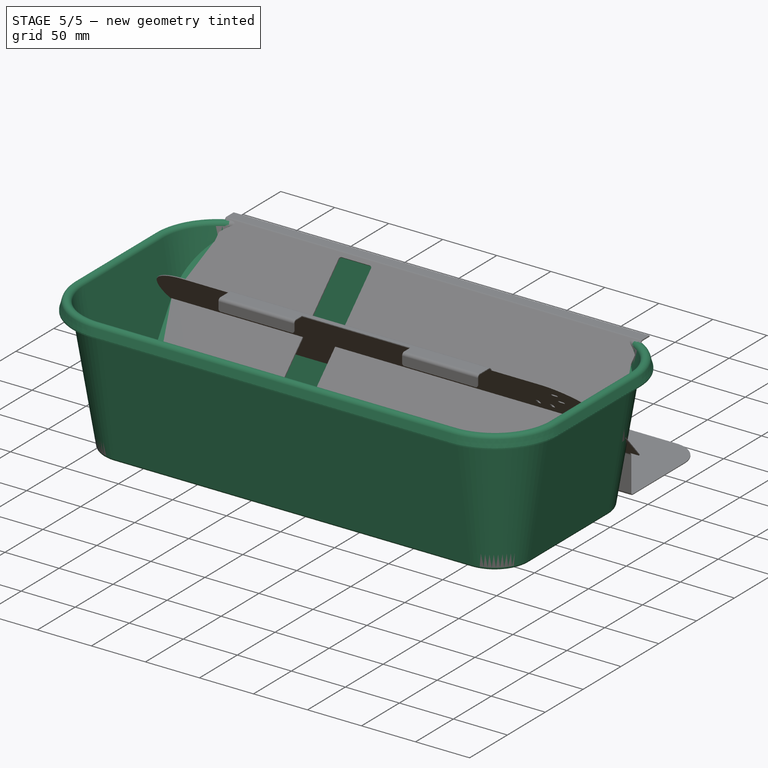
[diagram: stage 5 of 5 — iso view after this stage's code; geometry added in this stage tinted green]
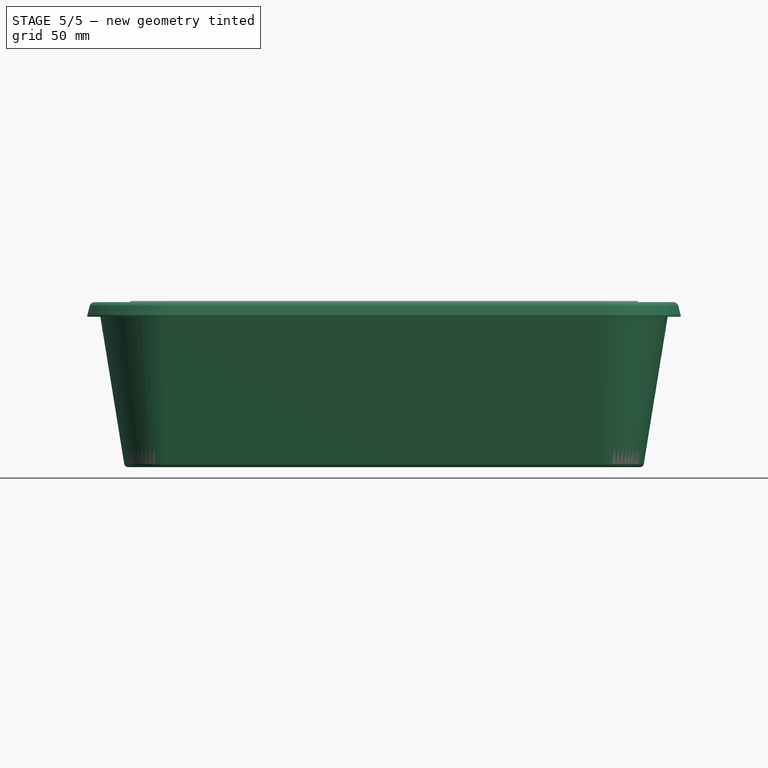
[diagram: stage 5 of 5 — front view after this stage's code; geometry added in this stage tinted green]
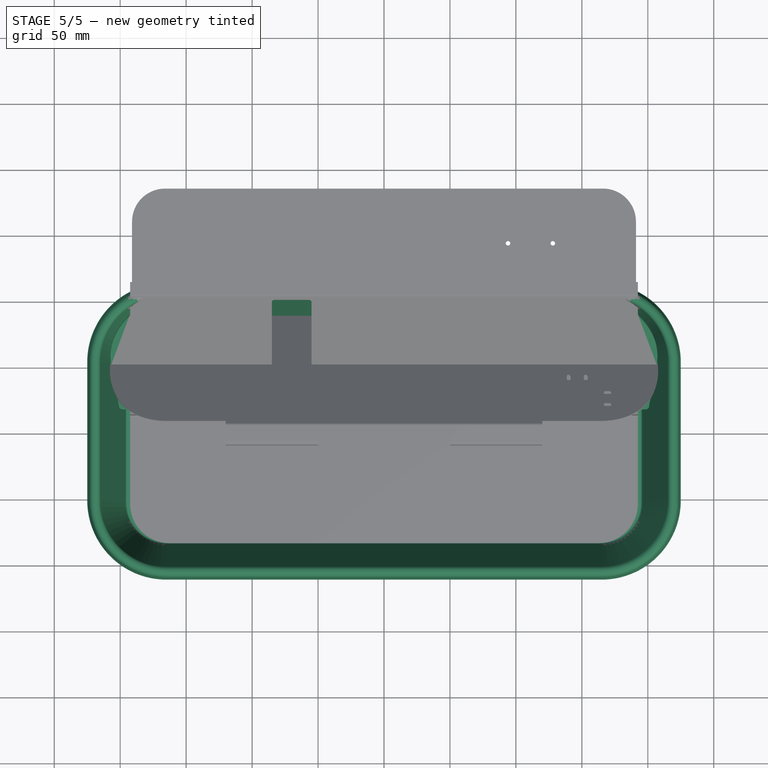
[diagram: stage 5 of 5 — top view after this stage's code; geometry added in this stage tinted green]
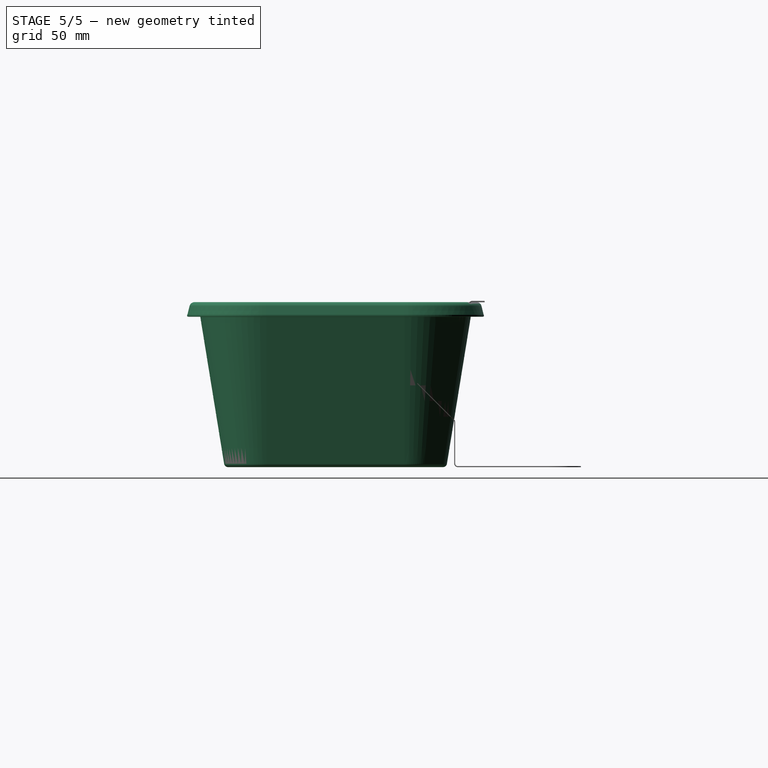
[diagram: stage 5 of 5 — right view after this stage's code; geometry added in this stage tinted green]
FEATURE [Sketcher::SketchObject] Sketch
  AttachmentSupport = -> [XY_Plane]
  FullyConstrained = true
  MapMode = 5
  sketch-geometry (10):
    g0: LineSegment StartX=-165 StartY=-112.5 StartZ=0 EndX=165 EndY=-112.5 EndZ=0
    g1: LineSegment StartX=225 StartY=-52.5 StartZ=0 EndX=225 EndY=52.5 EndZ=0
    g2: LineSegment StartX=165 StartY=112.5 StartZ=0 EndX=-165 EndY=112.5 EndZ=0
    g3: LineSegment StartX=-225 StartY=52.5 StartZ=0 EndX=-225 EndY=-52.5 EndZ=0
    g4: ArcOfCircle CenterX=-165 CenterY=-52.5 CenterZ=0 NormalX=0 NormalY=0 NormalZ=1 AngleXU=0 Radius=60 StartAngle=3.14159 EndAngle=4.71239
    g5: ArcOfCircle CenterX=165 CenterY=-52.5 CenterZ=0 NormalX=0 NormalY=0 NormalZ=1 AngleXU=0 Radius=60 StartAngle=4.71239 EndAngle=6.28319
    g6: ArcOfCircle CenterX=165 CenterY=52.5 CenterZ=0 NormalX=0 NormalY=0 NormalZ=1 AngleXU=0 Radius=60 StartAngle=0 EndAngle=1.5708
    g7: ArcOfCircle CenterX=-165 CenterY=52.5 CenterZ=0 NormalX=0 NormalY=0 NormalZ=1 AngleXU=0 Radius=60 StartAngle=1.5708 EndAngle=3.14159
    g8: GeomPoint X=-225 Y=-112.5 Z=0
    g9: GeomPoint X=225 Y=112.5 Z=0
  constraints (23):
    c: Tangent(g0,g4) = -1.5708
    c: Tangent(g0,g5) = -1.5708
    c: Tangent(g1,g5) = -1.5708
    c: Tangent(g1,g6) = -1.5708
    c: Tangent(g2,g6) = -1.5708
    c: Tangent(g2,g7) = -1.5708
    c: Tangent(g3,g7) = -1.5708
    c: Tangent(g3,g4) = -1.5708
    c: Horizontal(g0)
    c: Horizontal(g2)
    c: Vertical(g1)
    c: Vertical(g3)
    c: Equal(g4,g5)
    c: Equal(g5,g6)
    c: Equal(g6,g7)
    c: PointOnObject(g8,g0)
    c: PointOnObject(g8,g3)
    c: PointOnObject(g9,g1)
    c: PointOnObject(g9,g2)
    c: Symmetric(g8,g9,g-1)
    c: DistanceX(g8,g9) = 450
    c: DistanceY(g8,g9) = 225
    c: Radius(g6) = 60
FEATURE [Sketcher::SketchObject] Sketch001
  AttachmentOffset = pos=(112.5,0,0) rot=(0,0,1;0rad)
  AttachmentSupport = -> [YZ_Plane]
  FullyConstrained = false
  MapMode = 5
  Placement = pos=(0,112.5,0) rot=(0.57735,0.57735,0.57735;2.0944rad)
  sketch-geometry (9):
    g0: LineSegment StartX=0 StartY=114.239 StartZ=0 EndX=-0.971044 EndY=114 EndZ=0
    g1: LineSegment StartX=-0.971044 StartY=114 StartZ=0 EndX=-2.86954 EndY=121.717 EndZ=0
    g2: ArcOfCircle CenterX=-5.78267 CenterY=121 CenterZ=0 NormalX=0 NormalY=0 NormalZ=1 AngleXU=0 Radius=3 StartAngle=0.241233 EndAngle=2.9808
    g3: LineSegment StartX=-8.74397 StartY=121.48 StartZ=0 EndX=-28.0387 EndY=2.51969 EndZ=0
    g4: ArcOfCircle CenterX=-31 CenterY=3 CenterZ=0 NormalX=0 NormalY=0 NormalZ=1 AngleXU=0 Radius=3 StartAngle=4.71239 EndAngle=6.12239
    g5: LineSegment StartX=-31 StartY=0 StartZ=0 EndX=0 EndY=0 EndZ=0
    g6: LineSegment StartX=0 StartY=0 StartZ=0 EndX=0 EndY=114.239 EndZ=0
    g7: LineSegment StartX=0 StartY=113.736 StartZ=0 EndX=-10 EndY=113.736 EndZ=0
    g8: LineSegment StartX=-5.78267 StartY=124 StartZ=0 EndX=0 EndY=124 EndZ=0
  constraints (25):
    c: PointOnObject(g0,g-2)
    c: Coincident(g0,g1)
    c: Tangent(g2,g3) = -1.5708
    c: PointOnObject(g4,g-1)
    c: Coincident(g5,g6)
    c: Vertical(g6)
    c: Tangent(g4,g5) = -1.5708
    c: Tangent(g4,g3) = 1.5708
    c: Tangent(g2,g1) = -1.5708
    c: Perpendicular(g0,g1)
    c: Distance(g0) = 1
    c: Horizontal(g5)
    c: Radius(g2) = 3
    c: Radius(g4) = 3
    c: Coincident(g0,g6)
    c: DistanceX(g4) = -31
    c: PointOnObject(g7,g-2)
    c: PointOnObject(g7,g3)
    c: Horizontal(g7)
    c: DistanceX(g7,g7) = 10
    c: Tangent(g8,g2) = 1.5708
    c: PointOnObject(g8,g-2)
    c: Horizontal(g8)
    c: DistanceY(g0,g8) = 10
    c: DistanceY(g8) = 124
FEATURE [PartDesign::Pad] Pad
  Direction = (0,0,1)
  Length = 125
  Length2 = 10
  Profile = -> Sketch
  ReferenceAxis = -> Sketch [N_Axis]
  Suppressed = false
  Type = 0
FEATURE [PartDesign::SubtractivePipe] SubtractivePipe
  AuxilleryCurvelinear = true
  AuxillerySpineTangent = false
  BaseFeature = -> Pad
  Binormal = (0,0,0)
  Mode = 0
  Profile = -> Sketch001
  Spine = -> Sketch
  SpineTangent = false
  Suppressed = false
  Transformation = 0
  Transition = 0
FEATURE [Sketcher::SketchObject] Sketch002
  FullyConstrained = false
  Placement = pos=(0,0,0) rot=(0.57735,0.57735,0.57735;2.0944rad)
  sketch-geometry (5):
    g0: LineSegment StartX=-83 StartY=6 StartZ=0 EndX=15 EndY=6 EndZ=0
    g1: LineSegment StartX=15 StartY=6 StartZ=0 EndX=15 EndY=37 EndZ=0
    g2: LineSegment StartX=15 StartY=37 StartZ=0 EndX=103 EndY=125 EndZ=0
    g3: LineSegment StartX=103 StartY=125 StartZ=0 EndX=113 EndY=125 EndZ=0
    g4: GeomPoint X=113 Y=0 Z=0
  constraints (14):
    c: Horizontal(g0)
    c: Coincident(g0,g1)
    c: Vertical(g1)
    c: Coincident(g1,g2)
    c: Coincident(g2,g3)
    c: Horizontal(g3)
    c: Angle(g2) = 0.785398
    c: DistanceY(g2) = 125
    c: DistanceY(g0) = 6
    c: DistanceX(g0,g0) = 98
    c: DistanceY(g1,g1) = 31
    c: Vertical(g4,g3)
    c: DistanceX(g3,g3) = 10
    c: DistanceX(g0) = -83
FEATURE [Sketcher::SketchObject] Sketch003
  AttachmentSupport = -> [XY_Plane]
  FullyConstrained = true
  MapMode = 5
  sketch-geometry (10):
    g0: LineSegment StartX=-155.5 StartY=-48 StartZ=0 EndX=155.5 EndY=-48 EndZ=0
    g1: LineSegment StartX=160.5 StartY=-43 StartZ=0 EndX=160.5 EndY=43 EndZ=0
    g2: LineSegment StartX=155.5 StartY=48 StartZ=0 EndX=-155.5 EndY=48 EndZ=0
    g3: LineSegment StartX=-160.5 StartY=43 StartZ=0 EndX=-160.5 EndY=-43 EndZ=0
    g4: ArcOfCircle CenterX=-155.5 CenterY=-43 CenterZ=0 NormalX=0 NormalY=0 NormalZ=1 AngleXU=0 Radius=5 StartAngle=3.14159 EndAngle=4.71239
    g5: ArcOfCircle CenterX=155.5 CenterY=-43 CenterZ=0 NormalX=0 NormalY=0 NormalZ=1 AngleXU=0 Radius=5 StartAngle=4.71239 EndAngle=6.28319
    g6: ArcOfCircle CenterX=155.5 CenterY=43 CenterZ=0 NormalX=0 NormalY=0 NormalZ=1 AngleXU=0 Radius=5 StartAngle=5e-16 EndAngle=1.5708
    g7: ArcOfCircle CenterX=-155.5 CenterY=43 CenterZ=0 NormalX=0 NormalY=0 NormalZ=1 AngleXU=0 Radius=5 StartAngle=1.5708 EndAngle=3.14159
    g8: GeomPoint X=-160.5 Y=-48 Z=0
    g9: GeomPoint X=160.5 Y=48 Z=0
  constraints (23):
    c: Tangent(g0,g4) = -1.5708
    c: Tangent(g0,g5) = -1.5708
    c: Tangent(g1,g5) = -1.5708
    c: Tangent(g1,g6) = -1.5708
    c: Tangent(g2,g6) = -1.5708
    c: Tangent(g2,g7) = -1.5708
    c: Tangent(g3,g7) = -1.5708
    c: Tangent(g3,g4) = -1.5708
    c: Horizontal(g0)
    c: Horizontal(g2)
    c: Vertical(g1)
    c: Vertical(g3)
    c: Equal(g4,g5)
    c: Equal(g5,g6)
    c: Equal(g6,g7)
    c: PointOnObject(g8,g0)
    c: PointOnObject(g8,g3)
    c: PointOnObject(g9,g1)
    c: PointOnObject(g9,g2)
    c: Symmetric(g8,g9,g-1)
    c: DistanceX(g8,g9) = 321
    c: DistanceY(g8,g9) = 96
    c: Radius(g6) = 5
FEATURE [PartDesign::Pocket] Pocket
  BaseFeature = -> SubtractivePipe
  Direction = (0,0,-1)
  Length = 5
  Length2 = 5
  Profile = -> Sketch003
  ReferenceAxis = -> Sketch003 [N_Axis]
  Reversed = true
  Suppressed = false
  Type = 0
FEATURE [PartDesign::Thickness] Thickness
  Base = -> Pocket [Face4,Face13,Face5,Face1,Face3,Face12,Face11,Face10,Face9]
  BaseFeature = -> Pocket
  Intersection = false
  Join = 0
  Mode = 0
  Reversed = true
  SupportTransform = false
  Suppressed = false
  Value = 1.1
FEATURE [Sketcher::SketchObject] Sketch004
  AttachmentOffset = pos=(192.5,0,0) rot=(-1,0,0;1.5708rad)
  AttachmentSupport = -> [Binder]
  FullyConstrained = true
  MapMode = 7
  Placement = pos=(192.5,-83,6) rot=(0,0,1;0rad)
  expr: .AttachmentOffset.Base.x = <<BaseBend>>.length / 2
  sketch-geometry (3):
    g0: ArcOfCircle CenterX=-30 CenterY=30 CenterZ=0 NormalX=0 NormalY=0 NormalZ=1 AngleXU=0 Radius=30 StartAngle=4.71239 EndAngle=6.28319
    g1: LineSegment StartX=0 StartY=30 StartZ=0 EndX=0 EndY=0 EndZ=0
    g2: LineSegment StartX=0 StartY=0 StartZ=0 EndX=-30 EndY=0 EndZ=0
  constraints (7):
    c: PointOnObject(g0,g-2)
    c: PointOnObject(g0,g-1)
    c: Coincident(g1,g-1)
    c: Coincident(g1,g2)
    c: Tangent(g1,g0) = 1.5708
    c: Tangent(g2,g0) = 1.5708
    c: Radius(g0) = 30
FEATURE [PartDesign::Pocket] Pocket001
  BaseFeature = -> BaseBend
  Direction = (0,0,-1)
  Length = 5
  Length2 = 5
  Midplane = true
  Profile = -> Sketch004
  ReferenceAxis = -> Sketch004 [N_Axis]
  Suppressed = false
  Type = 0
FEATURE [PartDesign::Mirrored] Mirrored
  BaseFeature = -> Pocket001
  MirrorPlane = -> YZ_Plane001
  Originals = -> [Pocket001]
  Suppressed = false
FEATURE [Sketcher::SketchObject] Sketch005
  AttachmentOffset = pos=(192.5,0,0) rot=(-1,0,0;1.5708rad)
  AttachmentSupport = -> [Binder]
  FullyConstrained = true
  MapMode = 7
  Placement = pos=(192.5,15,37) rot=(1,0,0;0.785398rad)
  expr: .AttachmentOffset.Base.x = <<BaseBend>>.length / 2
  sketch-geometry (11):
    g0: LineSegment StartX=8.34455 StartY=7.60692 StartZ=0 EndX=14.2487 EndY=52.2795 EndZ=0
    g1: LineSegment StartX=0 StartY=105 StartZ=0 EndX=0 EndY=2 EndZ=0
    g2: ArcOfCircle CenterX=5.37041 CenterY=8 CenterZ=0 NormalX=0 NormalY=0 NormalZ=1 AngleXU=0 Radius=3 StartAngle=4.71239 EndAngle=6.15178
    g3: GeomPoint X=8 Y=5 Z=0
    g4: ArcOfCircle CenterX=-53.9393 CenterY=61.2916 CenterZ=0 NormalX=0 NormalY=0 NormalZ=1 AngleXU=0 Radius=68.781 StartAngle=6.15178 EndAngle=6.93788
    g5: GeomPoint X=17.9853 Y=80.5517 Z=0
    g6: LineSegment StartX=3 StartY=5 StartZ=0 EndX=5.37041 EndY=5 EndZ=0
    g7: ArcOfCircle CenterX=3 CenterY=2 CenterZ=0 NormalX=0 NormalY=0 NormalZ=1 AngleXU=0 Radius=3 StartAngle=1.5708 EndAngle=3.14159
    g8: ArcOfCircle CenterX=3 CenterY=105 CenterZ=0 NormalX=0 NormalY=0 NormalZ=1 AngleXU=0 Radius=3 StartAngle=3.14159 EndAngle=3.79628
    g9: LineSegment StartX=14.2487 StartY=52.2795 StartZ=0 EndX=17.9853 EndY=80.5517 EndZ=0
    g10: LineSegment StartX=17.9853 StartY=80.5517 StartZ=0 EndX=0.62029 EndY=103.173 EndZ=0
  constraints (25):
    c: Vertical(g1)
    c: PointOnObject(g1,g-2)
    c: DistanceX(g3) = 8
    c: PointOnObject(g3,g0)
    c: Tangent(g0,g2) = -1.5708
    c: PointOnObject(g5,g0)
    c: Tangent(g0,g4) = -1.5708
    c: Horizontal(g6)
    c: DistanceY(g3) = 5
    c: PointOnObject(g3,g6)
    c: Tangent(g7,g6) = 1.5708
    c: Tangent(g7,g1) = -1.5708
    c: Equal(g7,g2)
    c: Tangent(g8,g1) = -1.5708
    c: Tangent(g6,g2) = -1.5708
    c: Coincident(g0,g9)
    c: Coincident(g9,g5)
    c: Coincident(g9,g10)
    c: Tangent(g10,g4) = -1.5708
    c: DistanceY(g0) = 52.2795
    c: DistanceX(g0) = 14.2487
    c: DistanceY(g1) = 105
    c: Equal(g8,g7)
    c: Radius(g7) = 3
    c: Tangent(g4,g8) = 1.5708
FEATURE [Part::Mirroring] Part__Mirroring  label="Sketch005 (Mirror #1)"
  Base = (0,0,0)
  Normal = (1,0,0)
  Source = -> Sketch005
FEATURE [PartDesign::SubShapeBinder] Binder001
  BindCopyOnChange = 0
  BindMode = 0
  ClaimChildren = true
  Context = -> Body001 [Binder001.]
  Fuse = false
  MakeFace = true
  OffsetFill = false
  OffsetIntersection = false
  OffsetJoinType = 0
  OffsetOpenResult = false
  PartialLoad = false
  Relative = true
  Support = -> [Sketch005,Part__Mirroring]
  _Version = 2
FEATURE [PartDesign::Pad] Pad001
  BaseFeature = -> Mirrored
  Direction = (0,0.707107,-0.707107)
  Length = 1
  Length2 = 10
  Profile = -> Binder001
  Refine = true
  Reversed = true
  Suppressed = false
  Type = 0
  expr: Length = <<BaseBend>>.thickness
FEATURE [PartDesign::CoordinateSystem] Local_CS  label="basin_LCS"
  AttacherType = Attacher::AttachEngine3D
  AttachmentSupport = -> [XY_Plane]
  MapMode = 5
FEATURE [PartDesign::Body] Body  label="basin450x225x125"
  Group = -> [Sketch,Sketch001,Pad,SubtractivePipe,Sketch003,Pocket,Thickness,Local_CS]
  Origin = -> Origin
  Tip = -> Thickness
FEATURE [PartDesign::CoordinateSystem] Local_CS001  label="basin_pump_holder_LCS"
  AttacherType = Attacher::AttachEngine3D
  AttachmentSupport = -> [XY_Plane001]
  MapMode = 5
FEATURE [Sketcher::SketchObject] Sketch006
  AttachmentOffset = pos=(-70,0,0) rot=(-1,0,0;1.5708rad)
  AttachmentSupport = -> [Binder]
  ExternalGeometry = -> [Binder]
  FullyConstrained = true
  MapMode = 7
  Placement = pos=(-70,15,37) rot=(1,0,0;0.785398rad)
  sketch-geometry (11):
    g0: LineSegment StartX=-13 StartY=4 StartZ=0 EndX=13 EndY=4 EndZ=0
    g1: LineSegment StartX=15 StartY=6 StartZ=0 EndX=15 EndY=118.451 EndZ=0
    g2: LineSegment StartX=13 StartY=120.451 StartZ=0 EndX=-13 EndY=120.451 EndZ=0
    g3: LineSegment StartX=-15 StartY=118.451 StartZ=0 EndX=-15 EndY=6 EndZ=0
    g4: ArcOfCircle CenterX=-13 CenterY=6 CenterZ=0 NormalX=0 NormalY=0 NormalZ=1 AngleXU=0 Radius=2 StartAngle=3.14159 EndAngle=4.71239
    g5: ArcOfCircle CenterX=13 CenterY=6 CenterZ=0 NormalX=0 NormalY=0 NormalZ=1 AngleXU=0 Radius=2 StartAngle=4.71239 EndAngle=6.28319
    g6: ArcOfCircle CenterX=13 CenterY=118.451 CenterZ=0 NormalX=0 NormalY=0 NormalZ=1 AngleXU=0 Radius=2 StartAngle=3.1e-15 EndAngle=1.5708
    g7: ArcOfCircle CenterX=-13 CenterY=118.451 CenterZ=0 NormalX=0 NormalY=0 NormalZ=1 AngleXU=0 Radius=2 StartAngle=1.5708 EndAngle=3.14159
    g8: GeomPoint X=-15 Y=4 Z=0
    g9: GeomPoint X=15 Y=120.451 Z=0
    g10: GeomPoint X=0 Y=62.2254 Z=0
  constraints (25):
    c: Tangent(g0,g4) = -1.5708
    c: Tangent(g0,g5) = -1.5708
    c: Tangent(g1,g5) = -1.5708
    c: Tangent(g1,g6) = -1.5708
    c: Tangent(g2,g6) = -1.5708
    c: Tangent(g2,g7) = -1.5708
    c: Tangent(g3,g7) = -1.5708
    c: Tangent(g3,g4) = -1.5708
    c: Horizontal(g0)
    c: Horizontal(g2)
    c: Vertical(g1)
    c: Vertical(g3)
    c: Equal(g4,g5)
    c: Equal(g5,g6)
    c: Equal(g6,g7)
    c: PointOnObject(g8,g0)
    c: PointOnObject(g8,g3)
    c: PointOnObject(g9,g1)
    c: PointOnObject(g9,g2)
    c: Radius(g6) = 2
    c: PointOnObject(g10,g-2)
    c: Symmetric(g8,g9,g10)
    c: DistanceY(g-1,g8) = 4
    c: DistanceY(g9,g-3) = 4
    c: DistanceX(g8,g9) = 30
FEATURE [PartDesign::Pocket] Pocket002
  BaseFeature = -> Pad001
  Direction = (0,0.707107,-0.707107)
  Length = 5
  Length2 = 5
  Profile = -> Sketch006
  ReferenceAxis = -> Sketch006 [N_Axis]
  Reversed = true
  Suppressed = false
  Type = 0
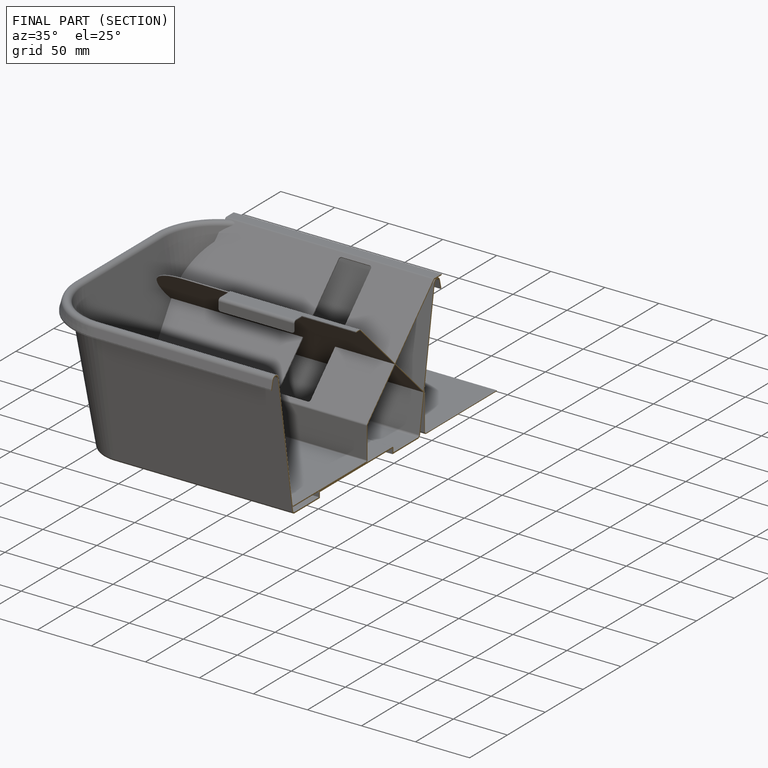
[diagram: finished part — half-section view (interior)]
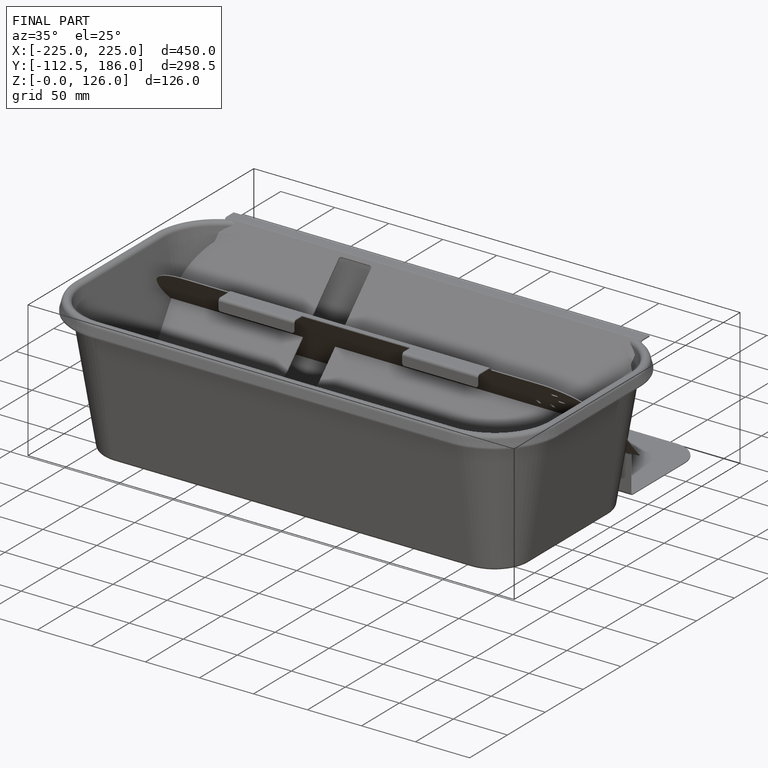
[diagram: finished part — iso view with bounding-box wireframe]
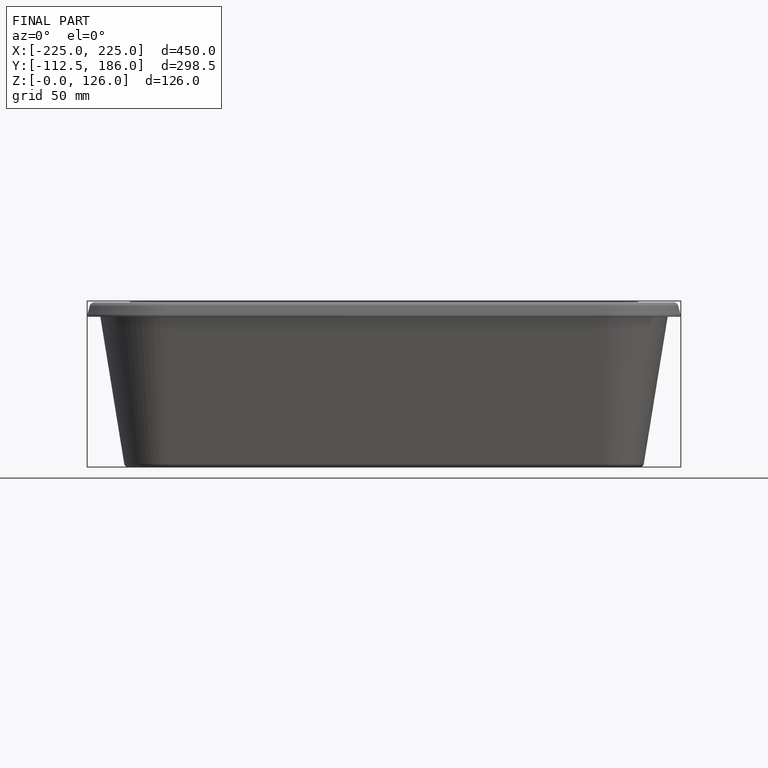
[diagram: finished part — front view with bounding-box wireframe]
